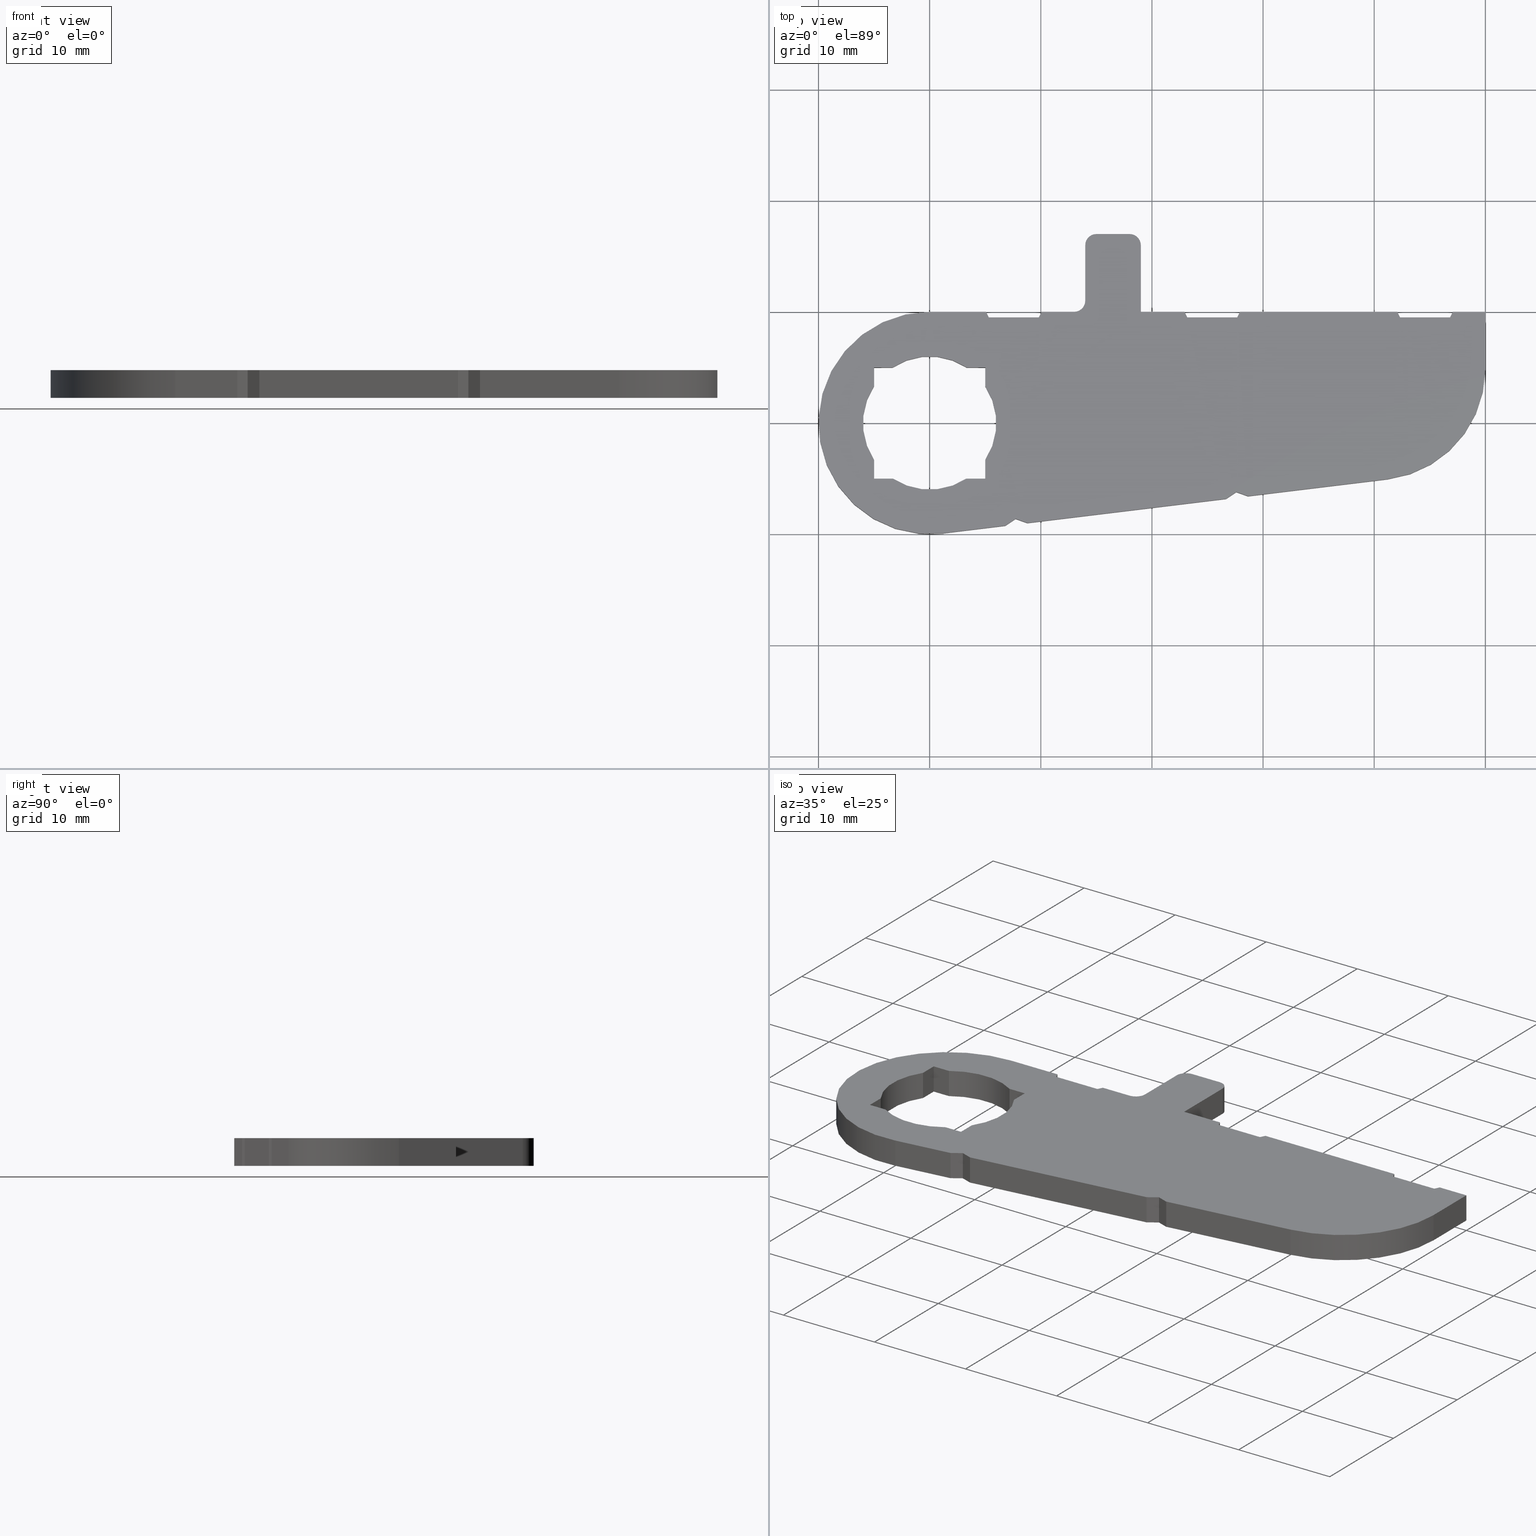
[diagram: canonical four-view strip — front | top / right | iso, engineering-drawing reading convention]
A machine part, canonical four-view strip (front | top / right | iso — engineering-drawing reading convention). The complete STEP part file that produces these views, byte-faithful:
ISO-10303-21;
HEADER;
/****************************************************************
 * Generated by software with PDE/Lib inside                    *
 * PDElib Version v4.4, created Mon 02/23/2004                  *
 * International Technegroup Inc. (www.iti-oh.com)              *
 ****************************************************************/
FILE_DESCRIPTION(('STEP AP203'),'2;1');
FILE_NAME('70CO00009.stp','2011-06-06T18:16:25',(''),(''),'2009.3.110','THINKDESIGN','');
FILE_SCHEMA(('CONFIG_CONTROL_DESIGN'));
ENDSEC;
DATA;
#2=CARTESIAN_POINT('',(46.825017492111371,9.499975159296298,-2.500000000000000));
#3=DIRECTION('',(-0.000000046794917,0.999999999999999,0.0));
#4=DIRECTION('',(-0.999999999999999,-0.000000046794917,0.0));
#5=AXIS2_PLACEMENT_3D('',#2,#3,#4);
#6=PLANE('',#5);
#7=CARTESIAN_POINT('',(46.825017492111371,9.499975159296298,-2.500000000000000));
#8=VERTEX_POINT('',#7);
#9=CARTESIAN_POINT('',(42.325017492111371,9.499974948719171,-2.500000000000000));
#10=VERTEX_POINT('',#9);
#11=CARTESIAN_POINT('',(46.825017492111371,9.499975159296298,-2.500000000000000));
#12=DIRECTION('',(-0.999999999999999,-0.000000046794917,0.0));
#13=VECTOR('',#12,4.500000000000004);
#14=LINE('',#11,#13);
#15=EDGE_CURVE('',#8,#10,#14,.T.);
#16=ORIENTED_EDGE('',*,*,#15,.T.);
#17=CARTESIAN_POINT('',(42.325017492111371,9.499974948719171,0.0));
#18=VERTEX_POINT('',#17);
#19=CARTESIAN_POINT('',(42.325017492111371,9.499974948719171,-2.500000000000000));
#20=DIRECTION('',(0.0,0.0,1.0));
#21=VECTOR('',#20,2.500000000000000);
#22=LINE('',#19,#21);
#23=EDGE_CURVE('',#10,#18,#22,.T.);
#24=ORIENTED_EDGE('',*,*,#23,.T.);
#25=CARTESIAN_POINT('',(46.825017492111371,9.499975159296298,0.0));
#26=VERTEX_POINT('',#25);
#27=CARTESIAN_POINT('',(46.825017492111371,9.499975159296298,0.0));
#28=DIRECTION('',(-0.999999999999999,-0.000000046794917,0.0));
#29=VECTOR('',#28,4.500000000000004);
#30=LINE('',#27,#29);
#31=EDGE_CURVE('',#26,#18,#30,.T.);
#32=ORIENTED_EDGE('',*,*,#31,.F.);
#33=CARTESIAN_POINT('',(46.825017492111371,9.499975159296298,-2.500000000000000));
#34=DIRECTION('',(0.0,0.0,1.0));
#35=VECTOR('',#34,2.500000000000000);
#36=LINE('',#33,#35);
#37=EDGE_CURVE('',#8,#26,#36,.T.);
#38=ORIENTED_EDGE('',*,*,#37,.F.);
#39=EDGE_LOOP('',(#16,#24,#32,#38));
#40=FACE_OUTER_BOUND('',#39,.T.);
#41=ADVANCED_FACE('',(#40),#6,.T.);
#42=CARTESIAN_POINT('',(42.325017492111371,9.499974948719171,-2.500000000000000));
#43=DIRECTION('',(0.894427170072899,0.447213637353989,0.0));
#44=DIRECTION('',(-0.447213637353989,0.894427170072899,0.0));
#45=AXIS2_PLACEMENT_3D('',#42,#43,#44);
#46=PLANE('',#45);
#47=CARTESIAN_POINT('',(42.075017468713938,9.999974937021250,-2.500000000000000));
#48=VERTEX_POINT('',#47);
#49=CARTESIAN_POINT('',(42.325017492111371,9.499974948719171,-2.500000000000000));
#50=DIRECTION('',(-0.447213637353989,0.894427170072899,0.0));
#51=VECTOR('',#50,0.559016994375660);
#52=LINE('',#49,#51);
#53=EDGE_CURVE('',#10,#48,#52,.T.);
#54=ORIENTED_EDGE('',*,*,#53,.T.);
#55=CARTESIAN_POINT('',(42.075017468713938,9.999974937021250,0.0));
#56=VERTEX_POINT('',#55);
#57=CARTESIAN_POINT('',(42.075017468713938,9.999974937021250,-2.500000000000000));
#58=DIRECTION('',(0.0,0.0,1.0));
#59=VECTOR('',#58,2.500000000000000);
#60=LINE('',#57,#59);
#61=EDGE_CURVE('',#48,#56,#60,.T.);
#62=ORIENTED_EDGE('',*,*,#61,.T.);
#63=CARTESIAN_POINT('',(42.325017492111371,9.499974948719171,0.0));
#64=DIRECTION('',(-0.447213637353989,0.894427170072899,0.0));
#65=VECTOR('',#64,0.559016994375660);
#66=LINE('',#63,#65);
#67=EDGE_CURVE('',#18,#56,#66,.T.);
#68=ORIENTED_EDGE('',*,*,#67,.F.);
#69=ORIENTED_EDGE('',*,*,#23,.F.);
#70=EDGE_LOOP('',(#54,#62,#68,#69));
#71=FACE_OUTER_BOUND('',#70,.T.);
#72=ADVANCED_FACE('',(#71),#46,.T.);
#73=CARTESIAN_POINT('',(42.075017468713938,9.999974937021250,-2.500000000000000));
#74=DIRECTION('',(-0.000000046794949,0.999999999999999,0.0));
#75=DIRECTION('',(-0.999999999999999,-0.000000046794949,0.0));
#76=AXIS2_PLACEMENT_3D('',#73,#74,#75);
#77=PLANE('',#76);
#78=CARTESIAN_POINT('',(27.925017457015471,9.999974274872727,-2.500000000000000));
#79=VERTEX_POINT('',#78);
#80=CARTESIAN_POINT('',(42.075017468713938,9.999974937021221,-2.500000000000000));
#81=DIRECTION('',(-0.999999999999999,-0.000000046794947,0.0));
#82=VECTOR('',#81,14.150000011698483);
#83=LINE('',#80,#82);
#84=EDGE_CURVE('',#48,#79,#83,.T.);
#85=ORIENTED_EDGE('',*,*,#84,.T.);
#86=CARTESIAN_POINT('',(27.925017457015471,9.999974274872727,0.0));
#87=VERTEX_POINT('',#86);
#88=CARTESIAN_POINT('',(27.925017457015471,9.999974274872727,-2.500000000000000));
#89=DIRECTION('',(0.0,0.0,1.0));
#90=VECTOR('',#89,2.500000000000000);
#91=LINE('',#88,#90);
#92=EDGE_CURVE('',#79,#87,#91,.T.);
#93=ORIENTED_EDGE('',*,*,#92,.T.);
#94=CARTESIAN_POINT('',(42.075017468713938,9.999974937021221,0.0));
#95=DIRECTION('',(-0.999999999999999,-0.000000046794947,0.0));
#96=VECTOR('',#95,14.150000011698483);
#97=LINE('',#94,#96);
#98=EDGE_CURVE('',#56,#87,#97,.T.);
#99=ORIENTED_EDGE('',*,*,#98,.F.);
#100=ORIENTED_EDGE('',*,*,#61,.F.);
#101=EDGE_LOOP('',(#85,#93,#99,#100));
#102=FACE_OUTER_BOUND('',#101,.T.);
#103=ADVANCED_FACE('',(#102),#77,.T.);
#104=CARTESIAN_POINT('',(27.925017457015471,9.999974274872727,-2.500000000000000));
#105=DIRECTION('',(-0.894427211927175,0.447213553645438,0.0));
#106=DIRECTION('',(-0.447213553645438,-0.894427211927175,0.0));
#107=AXIS2_PLACEMENT_3D('',#104,#105,#106);
#108=PLANE('',#107);
#109=CARTESIAN_POINT('',(27.675017480412905,9.499974263174124,-2.500000000000000));
#110=VERTEX_POINT('',#109);
#111=CARTESIAN_POINT('',(27.925017457015471,9.999974274872727,-2.500000000000000));
#112=DIRECTION('',(-0.447213553645438,-0.894427211927175,0.0));
#113=VECTOR('',#112,0.559016994374846);
#114=LINE('',#111,#113);
#115=EDGE_CURVE('',#79,#110,#114,.T.);
#116=ORIENTED_EDGE('',*,*,#115,.T.);
#117=CARTESIAN_POINT('',(27.675017480412905,9.499974263174124,0.0));
#118=VERTEX_POINT('',#117);
#119=CARTESIAN_POINT('',(27.675017480412905,9.499974263174124,-2.500000000000000));
#120=DIRECTION('',(0.0,0.0,1.0));
#121=VECTOR('',#120,2.500000000000000);
#122=LINE('',#119,#121);
#123=EDGE_CURVE('',#110,#118,#122,.T.);
#124=ORIENTED_EDGE('',*,*,#123,.T.);
#125=CARTESIAN_POINT('',(27.925017457015471,9.999974274872727,0.0));
#126=DIRECTION('',(-0.447213553645438,-0.894427211927175,0.0));
#127=VECTOR('',#126,0.559016994374846);
#128=LINE('',#125,#127);
#129=EDGE_CURVE('',#87,#118,#128,.T.);
#130=ORIENTED_EDGE('',*,*,#129,.F.);
#131=ORIENTED_EDGE('',*,*,#92,.F.);
#132=EDGE_LOOP('',(#116,#124,#130,#131));
#133=FACE_OUTER_BOUND('',#132,.T.);
#134=ADVANCED_FACE('',(#133),#108,.T.);
#135=CARTESIAN_POINT('',(27.675017480412905,9.499974263174124,-2.500000000000000));
#136=DIRECTION('',(-0.000000046794917,0.999999999999999,0.0));
#137=DIRECTION('',(-0.999999999999999,-0.000000046794917,0.0));
#138=AXIS2_PLACEMENT_3D('',#135,#136,#137);
#139=PLANE('',#138);
#140=CARTESIAN_POINT('',(23.175017480412905,9.499974052596997,-2.500000000000000));
#141=VERTEX_POINT('',#140);
#142=CARTESIAN_POINT('',(27.675017480412905,9.499974263174124,-2.500000000000000));
#143=DIRECTION('',(-0.999999999999999,-0.000000046794917,0.0));
#144=VECTOR('',#143,4.500000000000004);
#145=LINE('',#142,#144);
#146=EDGE_CURVE('',#110,#141,#145,.T.);
#147=ORIENTED_EDGE('',*,*,#146,.T.);
#148=CARTESIAN_POINT('',(23.175017480412905,9.499974052596997,0.0));
#149=VERTEX_POINT('',#148);
#150=CARTESIAN_POINT('',(23.175017480412905,9.499974052596997,-2.500000000000000));
#151=DIRECTION('',(0.0,0.0,1.0));
#152=VECTOR('',#151,2.500000000000000);
#153=LINE('',#150,#152);
#154=EDGE_CURVE('',#141,#149,#153,.T.);
#155=ORIENTED_EDGE('',*,*,#154,.T.);
#156=CARTESIAN_POINT('',(27.675017480412905,9.499974263174124,0.0));
#157=DIRECTION('',(-0.999999999999999,-0.000000046794917,0.0));
#158=VECTOR('',#157,4.500000000000004);
#159=LINE('',#156,#158);
#160=EDGE_CURVE('',#118,#149,#159,.T.);
#161=ORIENTED_EDGE('',*,*,#160,.F.);
#162=ORIENTED_EDGE('',*,*,#123,.F.);
#163=EDGE_LOOP('',(#147,#155,#161,#162));
#164=FACE_OUTER_BOUND('',#163,.T.);
#165=ADVANCED_FACE('',(#164),#139,.T.);
#166=CARTESIAN_POINT('',(23.175017480412905,9.499974052596997,-2.500000000000000));
#167=DIRECTION('',(0.894427170072574,0.447213637354640,0.0));
#168=DIRECTION('',(-0.447213637354640,0.894427170072574,0.0));
#169=AXIS2_PLACEMENT_3D('',#166,#167,#168);
#170=PLANE('',#169);
#171=CARTESIAN_POINT('',(22.925017457015471,9.999974040898167,-2.500000000000000));
#172=VERTEX_POINT('',#171);
#173=CARTESIAN_POINT('',(23.175017480412905,9.499974052596997,-2.500000000000000));
#174=DIRECTION('',(-0.447213637354640,0.894427170072574,0.0));
#175=VECTOR('',#174,0.559016994374846);
#176=LINE('',#173,#175);
#177=EDGE_CURVE('',#141,#172,#176,.T.);
#178=ORIENTED_EDGE('',*,*,#177,.T.);
#179=CARTESIAN_POINT('',(22.925017457015471,9.999974040898167,0.0));
#180=VERTEX_POINT('',#179);
#181=CARTESIAN_POINT('',(22.925017457015471,9.999974040898167,-2.500000000000000));
#182=DIRECTION('',(0.0,0.0,1.0));
#183=VECTOR('',#182,2.500000000000000);
#184=LINE('',#181,#183);
#185=EDGE_CURVE('',#172,#180,#184,.T.);
#186=ORIENTED_EDGE('',*,*,#185,.T.);
#187=CARTESIAN_POINT('',(23.175017480412905,9.499974052596997,0.0));
#188=DIRECTION('',(-0.447213637354640,0.894427170072574,0.0));
#189=VECTOR('',#188,0.559016994374846);
#190=LINE('',#187,#189);
#191=EDGE_CURVE('',#149,#180,#190,.T.);
#192=ORIENTED_EDGE('',*,*,#191,.F.);
#193=ORIENTED_EDGE('',*,*,#154,.F.);
#194=EDGE_LOOP('',(#178,#186,#192,#193));
#195=FACE_OUTER_BOUND('',#194,.T.);
#196=ADVANCED_FACE('',(#195),#170,.T.);
#197=CARTESIAN_POINT('',(22.925017457015471,9.999974040898167,-2.500000000000000));
#198=DIRECTION('',(-0.000000046794893,0.999999999999999,0.0));
#199=DIRECTION('',(-0.999999999999999,-0.000000046794893,0.0));
#200=AXIS2_PLACEMENT_3D('',#197,#198,#199);
#201=PLANE('',#200);
#202=CARTESIAN_POINT('',(19.000017462864704,9.999973857228213,-2.500000000000000));
#203=VERTEX_POINT('',#202);
#204=CARTESIAN_POINT('',(22.925017457015471,9.999974040898167,-2.500000000000000));
#205=DIRECTION('',(-0.999999999999999,-0.000000046794893,0.0));
#206=VECTOR('',#205,3.924999994150771);
#207=LINE('',#204,#206);
#208=EDGE_CURVE('',#172,#203,#207,.T.);
#209=ORIENTED_EDGE('',*,*,#208,.T.);
#210=CARTESIAN_POINT('',(19.000017462864704,9.999973857228213,0.0));
#211=VERTEX_POINT('',#210);
#212=CARTESIAN_POINT('',(19.000017462864704,9.999973857228213,-2.500000000000000));
#213=DIRECTION('',(0.0,0.0,1.0));
#214=VECTOR('',#213,2.500000000000000);
#215=LINE('',#212,#214);
#216=EDGE_CURVE('',#203,#211,#215,.T.);
#217=ORIENTED_EDGE('',*,*,#216,.T.);
#218=CARTESIAN_POINT('',(22.925017457015471,9.999974040898167,0.0));
#219=DIRECTION('',(-0.999999999999999,-0.000000046794893,0.0));
#220=VECTOR('',#219,3.924999994150771);
#221=LINE('',#218,#220);
#222=EDGE_CURVE('',#180,#211,#221,.T.);
#223=ORIENTED_EDGE('',*,*,#222,.F.);
#224=ORIENTED_EDGE('',*,*,#185,.F.);
#225=EDGE_LOOP('',(#209,#217,#223,#224));
#226=FACE_OUTER_BOUND('',#225,.T.);
#227=ADVANCED_FACE('',(#226),#201,.T.);
#228=CARTESIAN_POINT('',(19.000017462864704,9.999973857228213,-2.500000000000000));
#229=DIRECTION('',(0.999999999999999,0.000000046794867,0.0));
#230=DIRECTION('',(-0.000000046794867,0.999999999999999,0.0));
#231=AXIS2_PLACEMENT_3D('',#228,#229,#230);
#232=PLANE('',#231);
#233=CARTESIAN_POINT('',(19.000017182095505,15.999973857228213,-2.500000000000000));
#234=VERTEX_POINT('',#233);
#235=CARTESIAN_POINT('',(19.000017462864704,9.999973857228213,-2.500000000000000));
#236=DIRECTION('',(-0.000000046794867,0.999999999999999,0.0));
#237=VECTOR('',#236,6.000000000000006);
#238=LINE('',#235,#237);
#239=EDGE_CURVE('',#203,#234,#238,.T.);
#240=ORIENTED_EDGE('',*,*,#239,.T.);
#241=CARTESIAN_POINT('',(19.000017182095505,15.999973857228213,0.0));
#242=VERTEX_POINT('',#241);
#243=CARTESIAN_POINT('',(19.000017182095505,15.999973857228213,-2.500000000000000));
#244=DIRECTION('',(0.0,0.0,1.0));
#245=VECTOR('',#244,2.500000000000000);
#246=LINE('',#243,#245);
#247=EDGE_CURVE('',#234,#242,#246,.T.);
#248=ORIENTED_EDGE('',*,*,#247,.T.);
#249=CARTESIAN_POINT('',(19.000017462864704,9.999973857228213,0.0));
#250=DIRECTION('',(-0.000000046794867,0.999999999999999,0.0));
#251=VECTOR('',#250,6.000000000000006);
#252=LINE('',#249,#251);
#253=EDGE_CURVE('',#211,#242,#252,.T.);
#254=ORIENTED_EDGE('',*,*,#253,.F.);
#255=ORIENTED_EDGE('',*,*,#216,.F.);
#256=EDGE_LOOP('',(#240,#248,#254,#255));
#257=FACE_OUTER_BOUND('',#256,.T.);
#258=ADVANCED_FACE('',(#257),#232,.T.);
#259=CARTESIAN_POINT('',(18.000017182095505,15.999973810433346,-2.500000000000000));
#260=DIRECTION('',(0.0,0.0,1.0));
#261=DIRECTION('',(1.0,0.0,0.0));
#262=AXIS2_PLACEMENT_3D('',#259,#260,#261);
#263=CYLINDRICAL_SURFACE('',#262,1.0);
#264=CARTESIAN_POINT('',(18.000017135300411,16.999973810433346,-2.500000000000000));
#265=VERTEX_POINT('',#264);
#266=CARTESIAN_POINT('',(18.000017182095505,15.999973810433346,-2.500000000000000));
#267=DIRECTION('',(0.0,0.0,1.0));
#268=DIRECTION('',(1.0,0.0,0.0));
#269=AXIS2_PLACEMENT_3D('',#266,#267,#268);
#270=CIRCLE('',#269,1.0);
#271=EDGE_CURVE('',#234,#265,#270,.T.);
#272=ORIENTED_EDGE('',*,*,#271,.T.);
#273=CARTESIAN_POINT('',(18.000017135300411,16.999973810433346,0.0));
#274=VERTEX_POINT('',#273);
#275=CARTESIAN_POINT('',(18.000017135300411,16.999973810433346,-2.500000000000000));
#276=DIRECTION('',(0.0,0.0,1.0));
#277=VECTOR('',#276,2.500000000000000);
#278=LINE('',#275,#277);
#279=EDGE_CURVE('',#265,#274,#278,.T.);
#280=ORIENTED_EDGE('',*,*,#279,.T.);
#281=CARTESIAN_POINT('',(18.000017182095505,15.999973810433346,0.0));
#282=DIRECTION('',(0.0,0.0,1.0));
#283=DIRECTION('',(1.0,0.0,0.0));
#284=AXIS2_PLACEMENT_3D('',#281,#282,#283);
#285=CIRCLE('',#284,1.0);
#286=EDGE_CURVE('',#242,#274,#285,.T.);
#287=ORIENTED_EDGE('',*,*,#286,.F.);
#288=ORIENTED_EDGE('',*,*,#247,.F.);
#289=EDGE_LOOP('',(#272,#280,#287,#288));
#290=FACE_OUTER_BOUND('',#289,.T.);
#291=ADVANCED_FACE('',(#290),#263,.T.);
#292=CARTESIAN_POINT('',(18.000017135300411,16.999973810433346,-2.500000000000000));
#293=DIRECTION('',(-0.000000046794867,0.999999999999999,0.0));
#294=DIRECTION('',(-0.999999999999999,-0.000000046794867,0.0));
#295=AXIS2_PLACEMENT_3D('',#292,#293,#294);
#296=PLANE('',#295);
#297=CARTESIAN_POINT('',(15.000017135300411,16.999973670048746,-2.500000000000000));
#298=VERTEX_POINT('',#297);
#299=CARTESIAN_POINT('',(18.000017135300411,16.999973810433346,-2.500000000000000));
#300=DIRECTION('',(-0.999999999999999,-0.000000046794867,0.0));
#301=VECTOR('',#300,3.000000000000003);
#302=LINE('',#299,#301);
#303=EDGE_CURVE('',#265,#298,#302,.T.);
#304=ORIENTED_EDGE('',*,*,#303,.T.);
#305=CARTESIAN_POINT('',(15.000017135300411,16.999973670048746,0.0));
#306=VERTEX_POINT('',#305);
#307=CARTESIAN_POINT('',(15.000017135300411,16.999973670048746,-2.500000000000000));
#308=DIRECTION('',(0.0,0.0,1.0));
#309=VECTOR('',#308,2.500000000000000);
#310=LINE('',#307,#309);
#311=EDGE_CURVE('',#298,#306,#310,.T.);
#312=ORIENTED_EDGE('',*,*,#311,.T.);
#313=CARTESIAN_POINT('',(18.000017135300411,16.999973810433346,0.0));
#314=DIRECTION('',(-0.999999999999999,-0.000000046794867,0.0));
#315=VECTOR('',#314,3.000000000000003);
#316=LINE('',#313,#315);
#317=EDGE_CURVE('',#274,#306,#316,.T.);
#318=ORIENTED_EDGE('',*,*,#317,.F.);
#319=ORIENTED_EDGE('',*,*,#279,.F.);
#320=EDGE_LOOP('',(#304,#312,#318,#319));
#321=FACE_OUTER_BOUND('',#320,.T.);
#322=ADVANCED_FACE('',(#321),#296,.T.);
#323=CARTESIAN_POINT('',(15.000017182095505,15.999973670048746,-2.500000000000000));
#324=DIRECTION('',(0.0,0.0,1.0));
#325=DIRECTION('',(1.0,0.0,0.0));
#326=AXIS2_PLACEMENT_3D('',#323,#324,#325);
#327=CYLINDRICAL_SURFACE('',#326,1.0);
#328=CARTESIAN_POINT('',(14.000017182095505,15.999973623253879,-2.500000000000000));
#329=VERTEX_POINT('',#328);
#330=CARTESIAN_POINT('',(15.000017182095505,15.999973670048746,-2.500000000000000));
#331=DIRECTION('',(0.0,0.0,1.0));
#332=DIRECTION('',(1.0,0.0,0.0));
#333=AXIS2_PLACEMENT_3D('',#330,#331,#332);
#334=CIRCLE('',#333,1.0);
#335=EDGE_CURVE('',#298,#329,#334,.T.);
#336=ORIENTED_EDGE('',*,*,#335,.T.);
#337=CARTESIAN_POINT('',(14.000017182095505,15.999973623253879,0.0));
#338=VERTEX_POINT('',#337);
#339=CARTESIAN_POINT('',(14.000017182095505,15.999973623253879,-2.500000000000000));
#340=DIRECTION('',(0.0,0.0,1.0));
#341=VECTOR('',#340,2.500000000000000);
#342=LINE('',#339,#341);
#343=EDGE_CURVE('',#329,#338,#342,.T.);
#344=ORIENTED_EDGE('',*,*,#343,.T.);
#345=CARTESIAN_POINT('',(15.000017182095505,15.999973670048746,0.0));
#346=DIRECTION('',(0.0,0.0,1.0));
#347=DIRECTION('',(1.0,0.0,0.0));
#348=AXIS2_PLACEMENT_3D('',#345,#346,#347);
#349=CIRCLE('',#348,1.0);
#350=EDGE_CURVE('',#306,#338,#349,.T.);
#351=ORIENTED_EDGE('',*,*,#350,.F.);
#352=ORIENTED_EDGE('',*,*,#311,.F.);
#353=EDGE_LOOP('',(#336,#344,#351,#352));
#354=FACE_OUTER_BOUND('',#353,.T.);
#355=ADVANCED_FACE('',(#354),#327,.T.);
#356=CARTESIAN_POINT('',(14.000017182095505,15.999973623253879,-2.500000000000000));
#357=DIRECTION('',(-0.999999999999999,-0.000000046794867,0.0));
#358=DIRECTION('',(0.000000046794867,-0.999999999999999,0.0));
#359=AXIS2_PLACEMENT_3D('',#356,#357,#358);
#360=PLANE('',#359);
#361=CARTESIAN_POINT('',(14.000017416069838,10.999973623253879,-2.500000000000000));
#362=VERTEX_POINT('',#361);
#363=CARTESIAN_POINT('',(14.000017182095505,15.999973623253879,-2.500000000000000));
#364=DIRECTION('',(0.000000046794867,-0.999999999999999,0.0));
#365=VECTOR('',#364,5.000000000000005);
#366=LINE('',#363,#365);
#367=EDGE_CURVE('',#329,#362,#366,.T.);
#368=ORIENTED_EDGE('',*,*,#367,.T.);
#369=CARTESIAN_POINT('',(14.000017416069838,10.999973623253879,0.0));
#370=VERTEX_POINT('',#369);
#371=CARTESIAN_POINT('',(14.000017416069838,10.999973623253879,-2.500000000000000));
#372=DIRECTION('',(0.0,0.0,1.0));
#373=VECTOR('',#372,2.500000000000000);
#374=LINE('',#371,#373);
#375=EDGE_CURVE('',#362,#370,#374,.T.);
#376=ORIENTED_EDGE('',*,*,#375,.T.);
#377=CARTESIAN_POINT('',(14.000017182095505,15.999973623253879,0.0));
#378=DIRECTION('',(0.000000046794867,-0.999999999999999,0.0));
#379=VECTOR('',#378,5.000000000000005);
#380=LINE('',#377,#379);
#381=EDGE_CURVE('',#338,#370,#380,.T.);
#382=ORIENTED_EDGE('',*,*,#381,.F.);
#383=ORIENTED_EDGE('',*,*,#343,.F.);
#384=EDGE_LOOP('',(#368,#376,#382,#383));
#385=FACE_OUTER_BOUND('',#384,.T.);
#386=ADVANCED_FACE('',(#385),#360,.T.);
#387=CARTESIAN_POINT('',(13.000017416069838,10.999973576459013,-2.500000000000000));
#388=DIRECTION('',(0.0,0.0,-1.0));
#389=DIRECTION('',(0.999999999999999,0.000000046794867,0.0));
#390=AXIS2_PLACEMENT_3D('',#387,#388,#389);
#391=CYLINDRICAL_SURFACE('',#390,1.0);
#392=CARTESIAN_POINT('',(13.000017462864704,9.999973576459013,-2.500000000000000));
#393=VERTEX_POINT('',#392);
#394=CARTESIAN_POINT('',(13.000017416069838,10.999973576459013,-2.500000000000000));
#395=DIRECTION('',(0.0,0.0,-1.0));
#396=DIRECTION('',(1.0,0.0,0.0));
#397=AXIS2_PLACEMENT_3D('',#394,#395,#396);
#398=CIRCLE('',#397,1.0);
#399=EDGE_CURVE('',#362,#393,#398,.T.);
#400=ORIENTED_EDGE('',*,*,#399,.T.);
#401=CARTESIAN_POINT('',(13.000017462864704,9.999973576459013,0.0));
#402=VERTEX_POINT('',#401);
#403=CARTESIAN_POINT('',(13.000017462864704,9.999973576459013,-2.500000000000000));
#404=DIRECTION('',(0.0,0.0,1.0));
#405=VECTOR('',#404,2.500000000000000);
#406=LINE('',#403,#405);
#407=EDGE_CURVE('',#393,#402,#406,.T.);
#408=ORIENTED_EDGE('',*,*,#407,.T.);
#409=CARTESIAN_POINT('',(13.000017416069838,10.999973576459013,0.0));
#410=DIRECTION('',(0.0,0.0,-1.0));
#411=DIRECTION('',(1.0,0.0,0.0));
#412=AXIS2_PLACEMENT_3D('',#409,#410,#411);
#413=CIRCLE('',#412,1.0);
#414=EDGE_CURVE('',#370,#402,#413,.T.);
#415=ORIENTED_EDGE('',*,*,#414,.F.);
#416=ORIENTED_EDGE('',*,*,#375,.F.);
#417=EDGE_LOOP('',(#400,#408,#415,#416));
#418=FACE_OUTER_BOUND('',#417,.T.);
#419=ADVANCED_FACE('',(#418),#391,.F.);
#420=CARTESIAN_POINT('',(13.000017462864704,9.999973576459013,-2.500000000000000));
#421=DIRECTION('',(-0.000000046794902,0.999999999999999,0.0));
#422=DIRECTION('',(-0.999999999999999,-0.000000046794902,0.0));
#423=AXIS2_PLACEMENT_3D('',#420,#421,#422);
#424=PLANE('',#423);
#425=CARTESIAN_POINT('',(10.075017468714165,9.999973439583926,-2.500000000000000));
#426=VERTEX_POINT('',#425);
#427=CARTESIAN_POINT('',(13.000017462864704,9.999973576459013,-2.500000000000000));
#428=DIRECTION('',(-0.999999999999999,-0.000000046794902,0.0));
#429=VECTOR('',#428,2.924999994150543);
#430=LINE('',#427,#429);
#431=EDGE_CURVE('',#393,#426,#430,.T.);
#432=ORIENTED_EDGE('',*,*,#431,.T.);
#433=CARTESIAN_POINT('',(10.075017468714165,9.999973439583926,0.0));
#434=VERTEX_POINT('',#433);
#435=CARTESIAN_POINT('',(10.075017468714165,9.999973439583926,-2.500000000000000));
#436=DIRECTION('',(0.0,0.0,1.0));
#437=VECTOR('',#436,2.500000000000000);
#438=LINE('',#435,#437);
#439=EDGE_CURVE('',#426,#434,#438,.T.);
#440=ORIENTED_EDGE('',*,*,#439,.T.);
#441=CARTESIAN_POINT('',(13.000017462864704,9.999973576459013,0.0));
#442=DIRECTION('',(-0.999999999999999,-0.000000046794902,0.0));
#443=VECTOR('',#442,2.924999994150543);
#444=LINE('',#441,#443);
#445=EDGE_CURVE('',#402,#434,#444,.T.);
#446=ORIENTED_EDGE('',*,*,#445,.F.);
#447=ORIENTED_EDGE('',*,*,#407,.F.);
#448=EDGE_LOOP('',(#432,#440,#446,#447));
#449=FACE_OUTER_BOUND('',#448,.T.);
#450=ADVANCED_FACE('',(#449),#424,.T.);
#451=CARTESIAN_POINT('',(10.075017468714165,9.999973439583926,-2.500000000000000));
#452=DIRECTION('',(-0.894427211927256,0.447213553645275,0.0));
#453=DIRECTION('',(-0.447213553645275,-0.894427211927256,0.0));
#454=AXIS2_PLACEMENT_3D('',#451,#452,#453);
#455=PLANE('',#454);
#456=CARTESIAN_POINT('',(9.825017492111599,9.499973427885095,-2.500000000000000));
#457=VERTEX_POINT('',#456);
#458=CARTESIAN_POINT('',(10.075017468714165,9.999973439583926,-2.500000000000000));
#459=DIRECTION('',(-0.447213553645275,-0.894427211927256,0.0));
#460=VECTOR('',#459,0.559016994375050);
#461=LINE('',#458,#460);
#462=EDGE_CURVE('',#426,#457,#461,.T.);
#463=ORIENTED_EDGE('',*,*,#462,.T.);
#464=CARTESIAN_POINT('',(9.825017492111599,9.499973427885095,0.0));
#465=VERTEX_POINT('',#464);
#466=CARTESIAN_POINT('',(9.825017492111599,9.499973427885095,-2.500000000000000));
#467=DIRECTION('',(0.0,0.0,1.0));
#468=VECTOR('',#467,2.500000000000000);
#469=LINE('',#466,#468);
#470=EDGE_CURVE('',#457,#465,#469,.T.);
#471=ORIENTED_EDGE('',*,*,#470,.T.);
#472=CARTESIAN_POINT('',(10.075017468714165,9.999973439583926,0.0));
#473=DIRECTION('',(-0.447213553645275,-0.894427211927256,0.0));
#474=VECTOR('',#473,0.559016994375050);
#475=LINE('',#472,#474);
#476=EDGE_CURVE('',#434,#465,#475,.T.);
#477=ORIENTED_EDGE('',*,*,#476,.F.);
#478=ORIENTED_EDGE('',*,*,#439,.F.);
#479=EDGE_LOOP('',(#463,#471,#477,#478));
#480=FACE_OUTER_BOUND('',#479,.T.);
#481=ADVANCED_FACE('',(#480),#455,.T.);
#482=CARTESIAN_POINT('',(9.825017492111599,9.499973427885095,-2.500000000000000));
#483=DIRECTION('',(-0.000000046794867,0.999999999999999,0.0));
#484=DIRECTION('',(-0.999999999999999,-0.000000046794867,0.0));
#485=AXIS2_PLACEMENT_3D('',#482,#483,#484);
#486=PLANE('',#485);
#487=CARTESIAN_POINT('',(5.325017492111599,9.499973217308195,-2.500000000000000));
#488=VERTEX_POINT('',#487);
#489=CARTESIAN_POINT('',(9.825017492111599,9.499973427885095,-2.500000000000000));
#490=DIRECTION('',(-0.999999999999999,-0.000000046794867,0.0));
#491=VECTOR('',#490,4.500000000000004);
#492=LINE('',#489,#491);
#493=EDGE_CURVE('',#457,#488,#492,.T.);
#494=ORIENTED_EDGE('',*,*,#493,.T.);
#495=CARTESIAN_POINT('',(5.325017492111599,9.499973217308195,0.0));
#496=VERTEX_POINT('',#495);
#497=CARTESIAN_POINT('',(5.325017492111599,9.499973217308195,-2.500000000000000));
#498=DIRECTION('',(0.0,0.0,1.0));
#499=VECTOR('',#498,2.500000000000000);
#500=LINE('',#497,#499);
#501=EDGE_CURVE('',#488,#496,#500,.T.);
#502=ORIENTED_EDGE('',*,*,#501,.T.);
#503=CARTESIAN_POINT('',(9.825017492111599,9.499973427885095,0.0));
#504=DIRECTION('',(-0.999999999999999,-0.000000046794867,0.0));
#505=VECTOR('',#504,4.500000000000004);
#506=LINE('',#503,#505);
#507=EDGE_CURVE('',#465,#496,#506,.T.);
#508=ORIENTED_EDGE('',*,*,#507,.F.);
#509=ORIENTED_EDGE('',*,*,#470,.F.);
#510=EDGE_LOOP('',(#494,#502,#508,#509));
#511=FACE_OUTER_BOUND('',#510,.T.);
#512=ADVANCED_FACE('',(#511),#486,.T.);
#513=CARTESIAN_POINT('',(5.325017492111599,9.499973217308195,-2.500000000000000));
#514=DIRECTION('',(0.894427170072574,0.447213637354640,0.0));
#515=DIRECTION('',(-0.447213637354640,0.894427170072574,0.0));
#516=AXIS2_PLACEMENT_3D('',#513,#514,#515);
#517=PLANE('',#516);
#518=CARTESIAN_POINT('',(5.075017468714165,9.999973205609365,-2.500000000000000));
#519=VERTEX_POINT('',#518);
#520=CARTESIAN_POINT('',(5.325017492111599,9.499973217308195,-2.500000000000000));
#521=DIRECTION('',(-0.447213637354640,0.894427170072574,0.0));
#522=VECTOR('',#521,0.559016994374846);
#523=LINE('',#520,#522);
#524=EDGE_CURVE('',#488,#519,#523,.T.);
#525=ORIENTED_EDGE('',*,*,#524,.T.);
#526=CARTESIAN_POINT('',(5.075017468714165,9.999973205609365,0.0));
#527=VERTEX_POINT('',#526);
#528=CARTESIAN_POINT('',(5.075017468714165,9.999973205609365,-2.500000000000000));
#529=DIRECTION('',(0.0,0.0,1.0));
#530=VECTOR('',#529,2.500000000000000);
#531=LINE('',#528,#530);
#532=EDGE_CURVE('',#519,#527,#531,.T.);
#533=ORIENTED_EDGE('',*,*,#532,.T.);
#534=CARTESIAN_POINT('',(5.325017492111599,9.499973217308195,0.0));
#535=DIRECTION('',(-0.447213637354640,0.894427170072574,0.0));
#536=VECTOR('',#535,0.559016994374846);
#537=LINE('',#534,#536);
#538=EDGE_CURVE('',#496,#527,#537,.T.);
#539=ORIENTED_EDGE('',*,*,#538,.F.);
#540=ORIENTED_EDGE('',*,*,#501,.F.);
#541=EDGE_LOOP('',(#525,#533,#539,#540));
#542=FACE_OUTER_BOUND('',#541,.T.);
#543=ADVANCED_FACE('',(#542),#517,.T.);
#544=CARTESIAN_POINT('',(5.075017468714165,9.999973205609365,-2.500000000000000));
#545=DIRECTION('',(-0.000000046794891,0.999999999999999,0.0));
#546=DIRECTION('',(-0.999999999999999,-0.000000046794891,0.0));
#547=AXIS2_PLACEMENT_3D('',#544,#545,#546);
#548=PLANE('',#547);
#549=CARTESIAN_POINT('',(0.000017462864719,9.999972968125292,-2.500000000000000));
#550=VERTEX_POINT('',#549);
#551=CARTESIAN_POINT('',(5.075017468714165,9.999973205609365,-2.500000000000000));
#552=DIRECTION('',(-0.999999999999999,-0.000000046794891,0.0));
#553=VECTOR('',#552,5.075000005849466);
#554=LINE('',#551,#553);
#555=EDGE_CURVE('',#519,#550,#554,.T.);
#556=ORIENTED_EDGE('',*,*,#555,.T.);
#557=CARTESIAN_POINT('',(0.000017462864719,9.999972968125292,0.0));
#558=VERTEX_POINT('',#557);
#559=CARTESIAN_POINT('',(0.000017462864719,9.999972968125292,-2.500000000000000));
#560=DIRECTION('',(0.0,0.0,1.0));
#561=VECTOR('',#560,2.500000000000000);
#562=LINE('',#559,#561);
#563=EDGE_CURVE('',#550,#558,#562,.T.);
#564=ORIENTED_EDGE('',*,*,#563,.T.);
#565=CARTESIAN_POINT('',(5.075017468714165,9.999973205609365,0.0));
#566=DIRECTION('',(-0.999999999999999,-0.000000046794891,0.0));
#567=VECTOR('',#566,5.075000005849466);
#568=LINE('',#565,#567);
#569=EDGE_CURVE('',#527,#558,#568,.T.);
#570=ORIENTED_EDGE('',*,*,#569,.F.);
#571=ORIENTED_EDGE('',*,*,#532,.F.);
#572=EDGE_LOOP('',(#556,#564,#570,#571));
#573=FACE_OUTER_BOUND('',#572,.T.);
#574=ADVANCED_FACE('',(#573),#548,.T.);
#575=CARTESIAN_POINT('',(0.000017930813826,-0.000027031874708,-2.500000000000000));
#576=DIRECTION('',(0.0,0.0,1.0));
#577=DIRECTION('',(1.0,0.0,0.0));
#578=AXIS2_PLACEMENT_3D('',#575,#576,#577);
#579=CYLINDRICAL_SURFACE('',#578,10.0);
#580=CARTESIAN_POINT('',(1.207432200476475,-9.926866951074373,-2.500000000000000));
#581=VERTEX_POINT('',#580);
#582=CARTESIAN_POINT('',(0.000017930813826,-0.000027031874708,-2.500000000000000));
#583=DIRECTION('',(0.0,0.0,1.0));
#584=DIRECTION('',(1.0,0.0,0.0));
#585=AXIS2_PLACEMENT_3D('',#582,#583,#584);
#586=CIRCLE('',#585,10.0);
#587=EDGE_CURVE('',#550,#581,#586,.T.);
#588=ORIENTED_EDGE('',*,*,#587,.T.);
#589=CARTESIAN_POINT('',(1.207432200476475,-9.926866951074373,0.0));
#590=VERTEX_POINT('',#589);
#591=CARTESIAN_POINT('',(1.207432200476475,-9.926866951074373,-2.500000000000000));
#592=DIRECTION('',(0.0,0.0,1.0));
#593=VECTOR('',#592,2.500000000000000);
#594=LINE('',#591,#593);
#595=EDGE_CURVE('',#581,#590,#594,.T.);
#596=ORIENTED_EDGE('',*,*,#595,.T.);
#597=CARTESIAN_POINT('',(0.000017930813826,-0.000027031874708,0.0));
#598=DIRECTION('',(0.0,0.0,1.0));
#599=DIRECTION('',(1.0,0.0,0.0));
#600=AXIS2_PLACEMENT_3D('',#597,#598,#599);
#601=CIRCLE('',#600,10.0);
#602=EDGE_CURVE('',#558,#590,#601,.T.);
#603=ORIENTED_EDGE('',*,*,#602,.F.);
#604=ORIENTED_EDGE('',*,*,#563,.F.);
#605=EDGE_LOOP('',(#588,#596,#603,#604));
#606=FACE_OUTER_BOUND('',#605,.T.);
#607=ADVANCED_FACE('',(#606),#579,.T.);
#608=CARTESIAN_POINT('',(1.207432200476475,-9.926866951074373,-2.500000000000000));
#609=DIRECTION('',(0.120741426966250,-0.992683991919963,0.0));
#610=DIRECTION('',(0.992683991919963,0.120741426966250,0.0));
#611=AXIS2_PLACEMENT_3D('',#608,#609,#610);
#612=PLANE('',#611);
#613=CARTESIAN_POINT('',(6.807334365896210,-9.245743669317164,-2.500000000000000));
#614=VERTEX_POINT('',#613);
#615=CARTESIAN_POINT('',(1.207432200476475,-9.926866951074373,-2.500000000000000));
#616=DIRECTION('',(0.992683991919963,0.120741426966250,0.0));
#617=VECTOR('',#616,5.641173032909157);
#618=LINE('',#615,#617);
#619=EDGE_CURVE('',#581,#614,#618,.T.);
#620=ORIENTED_EDGE('',*,*,#619,.T.);
#621=CARTESIAN_POINT('',(6.807334365896210,-9.245743669317164,0.0));
#622=VERTEX_POINT('',#621);
#623=CARTESIAN_POINT('',(6.807334365896210,-9.245743669317164,-2.500000000000000));
#624=DIRECTION('',(0.0,0.0,1.0));
#625=VECTOR('',#624,2.500000000000000);
#626=LINE('',#623,#625);
#627=EDGE_CURVE('',#614,#622,#626,.T.);
#628=ORIENTED_EDGE('',*,*,#627,.T.);
#629=CARTESIAN_POINT('',(1.207432200476475,-9.926866951074373,0.0));
#630=DIRECTION('',(0.992683991919963,0.120741426966250,0.0));
#631=VECTOR('',#630,5.641173032909157);
#632=LINE('',#629,#631);
#633=EDGE_CURVE('',#590,#622,#632,.T.);
#634=ORIENTED_EDGE('',*,*,#633,.F.);
#635=ORIENTED_EDGE('',*,*,#595,.F.);
#636=EDGE_LOOP('',(#620,#628,#634,#635));
#637=FACE_OUTER_BOUND('',#636,.T.);
#638=ADVANCED_FACE('',(#637),#612,.T.);
#639=CARTESIAN_POINT('',(6.807334365896210,-9.245743669317164,-2.500000000000000));
#640=DIRECTION('',(0.551936192580638,-0.833886346764108,0.0));
#641=DIRECTION('',(0.833886346764108,0.551936192580638,0.0));
#642=AXIS2_PLACEMENT_3D('',#639,#640,#641);
#643=PLANE('',#642);
#644=CARTESIAN_POINT('',(7.739647644330638,-8.628660246392343,-2.500000000000000));
#645=VERTEX_POINT('',#644);
#646=CARTESIAN_POINT('',(6.807334365896210,-9.245743669317164,-2.500000000000000));
#647=DIRECTION('',(0.833886346764108,0.551936192580638,0.0));
#648=VECTOR('',#647,1.118033988747107);
#649=LINE('',#646,#648);
#650=EDGE_CURVE('',#614,#645,#649,.T.);
#651=ORIENTED_EDGE('',*,*,#650,.T.);
#652=CARTESIAN_POINT('',(7.739647644330638,-8.628660246392343,0.0));
#653=VERTEX_POINT('',#652);
#654=CARTESIAN_POINT('',(7.739647644330638,-8.628660246392343,-2.500000000000000));
#655=DIRECTION('',(0.0,0.0,1.0));
#656=VECTOR('',#655,2.500000000000000);
#657=LINE('',#654,#656);
#658=EDGE_CURVE('',#645,#653,#657,.T.);
#659=ORIENTED_EDGE('',*,*,#658,.T.);
#660=CARTESIAN_POINT('',(6.807334365896210,-9.245743669317164,0.0));
#661=DIRECTION('',(0.833886346764108,0.551936192580638,0.0));
#662=VECTOR('',#661,1.118033988747107);
#663=LINE('',#660,#662);
#664=EDGE_CURVE('',#622,#653,#663,.T.);
#665=ORIENTED_EDGE('',*,*,#664,.F.);
#666=ORIENTED_EDGE('',*,*,#627,.F.);
#667=EDGE_LOOP('',(#651,#659,#665,#666));
#668=FACE_OUTER_BOUND('',#667,.T.);
#669=ADVANCED_FACE('',(#668),#643,.T.);
#670=CARTESIAN_POINT('',(7.739647644330638,-8.628660246392343,-2.500000000000000));
#671=DIRECTION('',(-0.335947361862914,-0.941880762122971,0.0));
#672=DIRECTION('',(0.941880762122971,-0.335947361862914,0.0));
#673=AXIS2_PLACEMENT_3D('',#670,#671,#672);
#674=PLANE('',#673);
#675=CARTESIAN_POINT('',(8.792702349735734,-9.004260815384725,-2.500000000000000));
#676=VERTEX_POINT('',#675);
#677=CARTESIAN_POINT('',(7.739647644330638,-8.628660246392343,-2.500000000000000));
#678=DIRECTION('',(0.941880762122971,-0.335947361862914,0.0));
#679=VECTOR('',#678,1.118033988749916);
#680=LINE('',#677,#679);
#681=EDGE_CURVE('',#645,#676,#680,.T.);
#682=ORIENTED_EDGE('',*,*,#681,.T.);
#683=CARTESIAN_POINT('',(8.792702349735734,-9.004260815384725,0.0));
#684=VERTEX_POINT('',#683);
#685=CARTESIAN_POINT('',(8.792702349735734,-9.004260815384725,-2.500000000000000));
#686=DIRECTION('',(0.0,0.0,1.0));
#687=VECTOR('',#686,2.500000000000000);
#688=LINE('',#685,#687);
#689=EDGE_CURVE('',#676,#684,#688,.T.);
#690=ORIENTED_EDGE('',*,*,#689,.T.);
#691=CARTESIAN_POINT('',(7.739647644330638,-8.628660246392343,0.0));
#692=DIRECTION('',(0.941880762122971,-0.335947361862914,0.0));
#693=VECTOR('',#692,1.118033988749916);
#694=LINE('',#691,#693);
#695=EDGE_CURVE('',#653,#684,#694,.T.);
#696=ORIENTED_EDGE('',*,*,#695,.F.);
#697=ORIENTED_EDGE('',*,*,#658,.F.);
#698=EDGE_LOOP('',(#682,#690,#696,#697));
#699=FACE_OUTER_BOUND('',#698,.T.);
#700=ADVANCED_FACE('',(#699),#674,.T.);
#701=CARTESIAN_POINT('',(8.792702349735734,-9.004260815384725,-2.500000000000000));
#702=DIRECTION('',(0.120741426966118,-0.992683991919979,0.0));
#703=DIRECTION('',(0.992683991919979,0.120741426966118,0.0));
#704=AXIS2_PLACEMENT_3D('',#701,#702,#703);
#705=PLANE('',#704);
#706=CARTESIAN_POINT('',(26.661014204275091,-6.830915129997067,-2.500000000000000));
#707=VERTEX_POINT('',#706);
#708=CARTESIAN_POINT('',(8.792702349735734,-9.004260815384725,-2.500000000000000));
#709=DIRECTION('',(0.992683991919979,0.120741426966118,0.0));
#710=VECTOR('',#709,17.999999999979579);
#711=LINE('',#708,#710);
#712=EDGE_CURVE('',#676,#707,#711,.T.);
#713=ORIENTED_EDGE('',*,*,#712,.T.);
#714=CARTESIAN_POINT('',(26.661014204275091,-6.830915129997067,0.0));
#715=VERTEX_POINT('',#714);
#716=CARTESIAN_POINT('',(26.661014204275091,-6.830915129997067,-2.500000000000000));
#717=DIRECTION('',(0.0,0.0,1.0));
#718=VECTOR('',#717,2.500000000000000);
#719=LINE('',#716,#718);
#720=EDGE_CURVE('',#707,#715,#719,.T.);
#721=ORIENTED_EDGE('',*,*,#720,.T.);
#722=CARTESIAN_POINT('',(8.792702349735734,-9.004260815384725,0.0));
#723=DIRECTION('',(0.992683991919979,0.120741426966118,0.0));
#724=VECTOR('',#723,17.999999999979579);
#725=LINE('',#722,#724);
#726=EDGE_CURVE('',#684,#715,#725,.T.);
#727=ORIENTED_EDGE('',*,*,#726,.F.);
#728=ORIENTED_EDGE('',*,*,#689,.F.);
#729=EDGE_LOOP('',(#713,#721,#727,#728));
#730=FACE_OUTER_BOUND('',#729,.T.);
#731=ADVANCED_FACE('',(#730),#705,.T.);
#732=CARTESIAN_POINT('',(26.661014204275091,-6.830915129997067,-2.500000000000000));
#733=DIRECTION('',(0.551936192580500,-0.833886346764199,0.0));
#734=DIRECTION('',(0.833886346764199,0.551936192580500,0.0));
#735=AXIS2_PLACEMENT_3D('',#732,#733,#734);
#736=PLANE('',#735);
#737=CARTESIAN_POINT('',(27.593327482710627,-6.213831707071734,-2.500000000000000));
#738=VERTEX_POINT('',#737);
#739=CARTESIAN_POINT('',(26.661014204275091,-6.830915129997067,-2.500000000000000));
#740=DIRECTION('',(0.833886346764199,0.551936192580500,0.0));
#741=VECTOR('',#740,1.118033988748313);
#742=LINE('',#739,#741);
#743=EDGE_CURVE('',#707,#738,#742,.T.);
#744=ORIENTED_EDGE('',*,*,#743,.T.);
#745=CARTESIAN_POINT('',(27.593327482710627,-6.213831707071734,0.0));
#746=VERTEX_POINT('',#745);
#747=CARTESIAN_POINT('',(27.593327482710627,-6.213831707071734,-2.500000000000000));
#748=DIRECTION('',(0.0,0.0,1.0));
#749=VECTOR('',#748,2.500000000000000);
#750=LINE('',#747,#749);
#751=EDGE_CURVE('',#738,#746,#750,.T.);
#752=ORIENTED_EDGE('',*,*,#751,.T.);
#753=CARTESIAN_POINT('',(26.661014204275091,-6.830915129997067,0.0));
#754=DIRECTION('',(0.833886346764199,0.551936192580500,0.0));
#755=VECTOR('',#754,1.118033988748313);
#756=LINE('',#753,#755);
#757=EDGE_CURVE('',#715,#746,#756,.T.);
#758=ORIENTED_EDGE('',*,*,#757,.F.);
#759=ORIENTED_EDGE('',*,*,#720,.F.);
#760=EDGE_LOOP('',(#744,#752,#758,#759));
#761=FACE_OUTER_BOUND('',#760,.T.);
#762=ADVANCED_FACE('',(#761),#736,.T.);
#763=CARTESIAN_POINT('',(27.593327482710627,-6.213831707071734,-2.500000000000000));
#764=DIRECTION('',(-0.335947361863103,-0.941880762122904,0.0));
#765=DIRECTION('',(0.941880762122904,-0.335947361863103,0.0));
#766=AXIS2_PLACEMENT_3D('',#763,#764,#765);
#767=PLANE('',#766);
#768=CARTESIAN_POINT('',(28.646382188115744,-6.589432276066276,-2.500000000000000));
#769=VERTEX_POINT('',#768);
#770=CARTESIAN_POINT('',(27.593327482710627,-6.213831707071734,-2.500000000000000));
#771=DIRECTION('',(0.941880762122903,-0.335947361863103,0.0));
#772=VECTOR('',#771,1.118033988752078);
#773=LINE('',#770,#772);
#774=EDGE_CURVE('',#738,#769,#773,.T.);
#775=ORIENTED_EDGE('',*,*,#774,.T.);
#776=CARTESIAN_POINT('',(28.646382188115744,-6.589432276066276,0.0));
#777=VERTEX_POINT('',#776);
#778=CARTESIAN_POINT('',(28.646382188115744,-6.589432276066276,-2.500000000000000));
#779=DIRECTION('',(0.0,0.0,1.0));
#780=VECTOR('',#779,2.500000000000000);
#781=LINE('',#778,#780);
#782=EDGE_CURVE('',#769,#777,#781,.T.);
#783=ORIENTED_EDGE('',*,*,#782,.T.);
#784=CARTESIAN_POINT('',(27.593327482710627,-6.213831707071734,0.0));
#785=DIRECTION('',(0.941880762122903,-0.335947361863103,0.0));
#786=VECTOR('',#785,1.118033988752078);
#787=LINE('',#784,#786);
#788=EDGE_CURVE('',#746,#777,#787,.T.);
#789=ORIENTED_EDGE('',*,*,#788,.F.);
#790=ORIENTED_EDGE('',*,*,#751,.F.);
#791=EDGE_LOOP('',(#775,#783,#789,#790));
#792=FACE_OUTER_BOUND('',#791,.T.);
#793=ADVANCED_FACE('',(#792),#767,.T.);
#794=CARTESIAN_POINT('',(28.646382188115744,-6.589432276066276,-2.500000000000000));
#795=DIRECTION('',(0.120741426966280,-0.992683991919960,0.0));
#796=DIRECTION('',(0.992683991919960,0.120741426966280,0.0));
#797=AXIS2_PLACEMENT_3D('',#794,#795,#796);
#798=PLANE('',#797);
#799=CARTESIAN_POINT('',(41.207431972787404,-5.061615682325908,-2.500000000000000));
#800=VERTEX_POINT('',#799);
#801=CARTESIAN_POINT('',(28.646382188115744,-6.589432276066276,-2.500000000000000));
#802=DIRECTION('',(0.992683991919960,0.120741426966280,0.0));
#803=VECTOR('',#802,12.653623798624185);
#804=LINE('',#801,#803);
#805=EDGE_CURVE('',#769,#800,#804,.T.);
#806=ORIENTED_EDGE('',*,*,#805,.T.);
#807=CARTESIAN_POINT('',(41.207431972787404,-5.061615682325908,0.0));
#808=VERTEX_POINT('',#807);
#809=CARTESIAN_POINT('',(41.207431972787404,-5.061615682325908,-2.500000000000000));
#810=DIRECTION('',(0.0,0.0,1.0));
#811=VECTOR('',#810,2.500000000000000);
#812=LINE('',#809,#811);
#813=EDGE_CURVE('',#800,#808,#812,.T.);
#814=ORIENTED_EDGE('',*,*,#813,.T.);
#815=CARTESIAN_POINT('',(28.646382188115744,-6.589432276066276,0.0));
#816=DIRECTION('',(0.992683991919960,0.120741426966280,0.0));
#817=VECTOR('',#816,12.653623798624185);
#818=LINE('',#815,#817);
#819=EDGE_CURVE('',#777,#808,#818,.T.);
#820=ORIENTED_EDGE('',*,*,#819,.F.);
#821=ORIENTED_EDGE('',*,*,#782,.F.);
#822=EDGE_LOOP('',(#806,#814,#820,#821));
#823=FACE_OUTER_BOUND('',#822,.T.);
#824=ADVANCED_FACE('',(#823),#798,.T.);
#825=CARTESIAN_POINT('',(40.000017703124293,4.865224236873644,-2.500000000000000));
#826=DIRECTION('',(0.0,0.0,1.0));
#827=DIRECTION('',(0.120741426966311,-0.992683991919956,0.0));
#828=AXIS2_PLACEMENT_3D('',#825,#826,#827);
#829=CYLINDRICAL_SURFACE('',#828,9.999999999999993);
#830=CARTESIAN_POINT('',(50.000017703124271,4.865224704818502,-2.500000000000000));
#831=VERTEX_POINT('',#830);
#832=CARTESIAN_POINT('',(40.000017703124300,4.865224236873645,-2.500000000000001));
#833=DIRECTION('',(0.0,0.0,1.000000000000000));
#834=DIRECTION('',(0.120741426966311,-0.992683991919956,0.0));
#835=AXIS2_PLACEMENT_3D('',#832,#833,#834);
#836=CIRCLE('',#835,9.999999999999993);
#837=EDGE_CURVE('',#800,#831,#836,.T.);
#838=ORIENTED_EDGE('',*,*,#837,.T.);
#839=CARTESIAN_POINT('',(50.000017703124271,4.865224704818502,0.0));
#840=VERTEX_POINT('',#839);
#841=CARTESIAN_POINT('',(50.000017703124271,4.865224704818502,-2.500000000000000));
#842=DIRECTION('',(0.0,0.0,1.0));
#843=VECTOR('',#842,2.500000000000000);
#844=LINE('',#841,#843);
#845=EDGE_CURVE('',#831,#840,#844,.T.);
#846=ORIENTED_EDGE('',*,*,#845,.T.);
#847=CARTESIAN_POINT('',(40.000017703124300,4.865224236873645,0.0));
#848=DIRECTION('',(0.0,0.0,1.000000000000000));
#849=DIRECTION('',(0.120741426966311,-0.992683991919956,0.0));
#850=AXIS2_PLACEMENT_3D('',#847,#848,#849);
#851=CIRCLE('',#850,9.999999999999993);
#852=EDGE_CURVE('',#808,#840,#851,.T.);
#853=ORIENTED_EDGE('',*,*,#852,.F.);
#854=ORIENTED_EDGE('',*,*,#813,.F.);
#855=EDGE_LOOP('',(#838,#846,#853,#854));
#856=FACE_OUTER_BOUND('',#855,.T.);
#857=ADVANCED_FACE('',(#856),#829,.T.);
#858=CARTESIAN_POINT('',(50.000017703124271,4.865224704818502,-2.500000000000000));
#859=DIRECTION('',(1.0,0.0,0.0));
#860=DIRECTION('',(0.0,1.0,0.0));
#861=AXIS2_PLACEMENT_3D('',#858,#859,#860);
#862=PLANE('',#861);
#863=CARTESIAN_POINT('',(50.000017703124271,9.999975307860666,-2.500000000000000));
#864=VERTEX_POINT('',#863);
#865=CARTESIAN_POINT('',(50.000017703124271,4.865224704818502,-2.500000000000000));
#866=DIRECTION('',(0.0,1.0,0.0));
#867=VECTOR('',#866,5.134750603042164);
#868=LINE('',#865,#867);
#869=EDGE_CURVE('',#831,#864,#868,.T.);
#870=ORIENTED_EDGE('',*,*,#869,.T.);
#871=CARTESIAN_POINT('',(50.000017703124271,9.999975307860666,0.0));
#872=VERTEX_POINT('',#871);
#873=CARTESIAN_POINT('',(50.000017703124271,9.999975307860666,-2.500000000000000));
#874=DIRECTION('',(0.0,0.0,1.0));
#875=VECTOR('',#874,2.500000000000000);
#876=LINE('',#873,#875);
#877=EDGE_CURVE('',#864,#872,#876,.T.);
#878=ORIENTED_EDGE('',*,*,#877,.T.);
#879=CARTESIAN_POINT('',(50.000017703124271,4.865224704818502,0.0));
#880=DIRECTION('',(0.0,1.0,0.0));
#881=VECTOR('',#880,5.134750603042164);
#882=LINE('',#879,#881);
#883=EDGE_CURVE('',#840,#872,#882,.T.);
#884=ORIENTED_EDGE('',*,*,#883,.F.);
#885=ORIENTED_EDGE('',*,*,#845,.F.);
#886=EDGE_LOOP('',(#870,#878,#884,#885));
#887=FACE_OUTER_BOUND('',#886,.T.);
#888=ADVANCED_FACE('',(#887),#862,.T.);
#889=CARTESIAN_POINT('',(50.000017703124271,9.999975307860666,-2.500000000000000));
#890=DIRECTION('',(-0.000000046793596,0.999999999999999,0.0));
#891=DIRECTION('',(-0.999999999999999,-0.000000046793596,0.0));
#892=AXIS2_PLACEMENT_3D('',#889,#890,#891);
#893=PLANE('',#892);
#894=CARTESIAN_POINT('',(47.075017468713938,9.999975170989387,-2.500000000000000));
#895=VERTEX_POINT('',#894);
#896=CARTESIAN_POINT('',(50.000017703124279,9.999975307860666,-2.500000000000000));
#897=DIRECTION('',(-0.999999999999999,-0.000000046793596,0.0));
#898=VECTOR('',#897,2.925000234410344);
#899=LINE('',#896,#898);
#900=EDGE_CURVE('',#864,#895,#899,.T.);
#901=ORIENTED_EDGE('',*,*,#900,.T.);
#902=CARTESIAN_POINT('',(47.075017468713938,9.999975170989387,0.0));
#903=VERTEX_POINT('',#902);
#904=CARTESIAN_POINT('',(47.075017468713938,9.999975170989387,-2.500000000000000));
#905=DIRECTION('',(0.0,0.0,1.0));
#906=VECTOR('',#905,2.500000000000000);
#907=LINE('',#904,#906);
#908=EDGE_CURVE('',#895,#903,#907,.T.);
#909=ORIENTED_EDGE('',*,*,#908,.T.);
#910=CARTESIAN_POINT('',(50.000017703124279,9.999975307860666,0.0));
#911=DIRECTION('',(-0.999999999999999,-0.000000046793596,0.0));
#912=VECTOR('',#911,2.925000234410344);
#913=LINE('',#910,#912);
#914=EDGE_CURVE('',#872,#903,#913,.T.);
#915=ORIENTED_EDGE('',*,*,#914,.F.);
#916=ORIENTED_EDGE('',*,*,#877,.F.);
#917=EDGE_LOOP('',(#901,#909,#915,#916));
#918=FACE_OUTER_BOUND('',#917,.T.);
#919=ADVANCED_FACE('',(#918),#893,.T.);
#920=CARTESIAN_POINT('',(47.075017468713938,9.999975170989387,-2.500000000000000));
#921=DIRECTION('',(-0.894427211925202,0.447213553649383,0.0));
#922=DIRECTION('',(-0.447213553649383,-0.894427211925202,0.0));
#923=AXIS2_PLACEMENT_3D('',#920,#921,#922);
#924=PLANE('',#923);
#925=CARTESIAN_POINT('',(47.075017468713938,9.999975170989387,-2.500000000000000));
#926=DIRECTION('',(-0.447213553649383,-0.894427211925202,0.0));
#927=VECTOR('',#926,0.559016994369915);
#928=LINE('',#925,#927);
#929=EDGE_CURVE('',#895,#8,#928,.T.);
#930=ORIENTED_EDGE('',*,*,#929,.T.);
#931=ORIENTED_EDGE('',*,*,#37,.T.);
#932=CARTESIAN_POINT('',(47.075017468713938,9.999975170989387,0.0));
#933=DIRECTION('',(-0.447213553649383,-0.894427211925202,0.0));
#934=VECTOR('',#933,0.559016994369915);
#935=LINE('',#932,#934);
#936=EDGE_CURVE('',#903,#26,#935,.T.);
#937=ORIENTED_EDGE('',*,*,#936,.F.);
#938=ORIENTED_EDGE('',*,*,#908,.F.);
#939=EDGE_LOOP('',(#930,#931,#937,#938));
#940=FACE_OUTER_BOUND('',#939,.T.);
#941=ADVANCED_FACE('',(#940),#924,.T.);
#942=CARTESIAN_POINT('',(-16.000102047022892,-12.700147116663885,-2.500000000000000));
#943=DIRECTION('',(0.0,0.0,1.0));
#944=DIRECTION('',(1.0,0.0,0.0));
#945=AXIS2_PLACEMENT_3D('',#942,#943,#944);
#946=PLANE('',#945);
#947=ORIENTED_EDGE('',*,*,#929,.F.);
#948=ORIENTED_EDGE('',*,*,#900,.F.);
#949=ORIENTED_EDGE('',*,*,#869,.F.);
#950=ORIENTED_EDGE('',*,*,#837,.F.);
#951=ORIENTED_EDGE('',*,*,#805,.F.);
#952=ORIENTED_EDGE('',*,*,#774,.F.);
#953=ORIENTED_EDGE('',*,*,#743,.F.);
#954=ORIENTED_EDGE('',*,*,#712,.F.);
#955=ORIENTED_EDGE('',*,*,#681,.F.);
#956=ORIENTED_EDGE('',*,*,#650,.F.);
#957=ORIENTED_EDGE('',*,*,#619,.F.);
#958=ORIENTED_EDGE('',*,*,#587,.F.);
#959=ORIENTED_EDGE('',*,*,#555,.F.);
#960=ORIENTED_EDGE('',*,*,#524,.F.);
#961=ORIENTED_EDGE('',*,*,#493,.F.);
#962=ORIENTED_EDGE('',*,*,#462,.F.);
#963=ORIENTED_EDGE('',*,*,#431,.F.);
#964=ORIENTED_EDGE('',*,*,#399,.F.);
#965=ORIENTED_EDGE('',*,*,#367,.F.);
#966=ORIENTED_EDGE('',*,*,#335,.F.);
#967=ORIENTED_EDGE('',*,*,#303,.F.);
#968=ORIENTED_EDGE('',*,*,#271,.F.);
#969=ORIENTED_EDGE('',*,*,#239,.F.);
#970=ORIENTED_EDGE('',*,*,#208,.F.);
#971=ORIENTED_EDGE('',*,*,#177,.F.);
#972=ORIENTED_EDGE('',*,*,#146,.F.);
#973=ORIENTED_EDGE('',*,*,#115,.F.);
#974=ORIENTED_EDGE('',*,*,#84,.F.);
#975=ORIENTED_EDGE('',*,*,#53,.F.);
#976=ORIENTED_EDGE('',*,*,#15,.F.);
#977=EDGE_LOOP('',(#947,#948,#949,#950,#951,#952,#953,#954,#955,#956,#957,#958,#959,#960,#961,#962,#963,#964,#965,#966,#967,#968,#969,#970,#971,#972,#973,#974,#975,#976));
#978=FACE_OUTER_BOUND('',#977,.T.);
#979=CARTESIAN_POINT('',(-5.000000233506611,4.989999766025477,-2.500000000000000));
#980=VERTEX_POINT('',#979);
#981=CARTESIAN_POINT('',(-3.331651592688786,4.989999766025477,-2.500000000000000));
#982=VERTEX_POINT('',#981);
#983=CARTESIAN_POINT('',(-5.000000233506611,4.989999766025477,-2.500000000000000));
#984=DIRECTION('',(1.0,0.0,0.0));
#985=VECTOR('',#984,1.668348640817832);
#986=LINE('',#983,#985);
#987=EDGE_CURVE('',#980,#982,#986,.T.);
#988=ORIENTED_EDGE('',*,*,#987,.F.);
#989=CARTESIAN_POINT('',(-5.000000233506611,3.316624438330905,-2.500000000000000));
#990=VERTEX_POINT('',#989);
#991=CARTESIAN_POINT('',(-5.000000233506611,3.316624438330910,-2.500000000000000));
#992=DIRECTION('',(0.0,1.0,0.0));
#993=VECTOR('',#992,1.673375327694567);
#994=LINE('',#991,#993);
#995=EDGE_CURVE('',#990,#980,#994,.T.);
#996=ORIENTED_EDGE('',*,*,#995,.F.);
#997=CARTESIAN_POINT('',(-5.000000233506611,-3.316624438330905,-2.500000000000000));
#998=VERTEX_POINT('',#997);
#999=CARTESIAN_POINT('',(0.0,0.0,-2.500000000000000));
#1000=DIRECTION('',(0.0,0.0,-1.0));
#1001=DIRECTION('',(1.0,0.0,0.0));
#1002=AXIS2_PLACEMENT_3D('',#999,#1000,#1001);
#1003=CIRCLE('',#1002,5.999999999999999);
#1004=EDGE_CURVE('',#998,#990,#1003,.T.);
#1005=ORIENTED_EDGE('',*,*,#1004,.F.);
#1006=CARTESIAN_POINT('',(-5.000000233506611,-5.009999766025373,-2.500000000000000));
#1007=VERTEX_POINT('',#1006);
#1008=CARTESIAN_POINT('',(-5.000000233506611,-5.009999766025373,-2.500000000000000));
#1009=DIRECTION('',(0.0,1.0,0.0));
#1010=VECTOR('',#1009,1.693375327694463);
#1011=LINE('',#1008,#1010);
#1012=EDGE_CURVE('',#1007,#998,#1011,.T.);
#1013=ORIENTED_EDGE('',*,*,#1012,.F.);
#1014=CARTESIAN_POINT('',(-3.301500014300430,-5.009999766025373,-2.500000000000000));
#1015=VERTEX_POINT('',#1014);
#1016=CARTESIAN_POINT('',(-3.301500014300425,-5.009999766025373,-2.500000000000000));
#1017=DIRECTION('',(-1.0,0.0,0.0));
#1018=VECTOR('',#1017,1.698500219206187);
#1019=LINE('',#1016,#1018);
#1020=EDGE_CURVE('',#1015,#1007,#1019,.T.);
#1021=ORIENTED_EDGE('',*,*,#1020,.F.);
#1022=CARTESIAN_POINT('',(3.301500014300423,-5.009999766025373,-2.500000000000000));
#1023=VERTEX_POINT('',#1022);
#1024=CARTESIAN_POINT('',(0.0,0.0,-2.500000000000000));
#1025=DIRECTION('',(0.0,0.0,-1.0));
#1026=DIRECTION('',(1.0,0.0,0.0));
#1027=AXIS2_PLACEMENT_3D('',#1024,#1025,#1026);
#1028=CIRCLE('',#1027,5.999999999999999);
#1029=EDGE_CURVE('',#1023,#1015,#1028,.T.);
#1030=ORIENTED_EDGE('',*,*,#1029,.F.);
#1031=CARTESIAN_POINT('',(5.000000234442574,-5.009999766025373,-2.500000000000000));
#1032=VERTEX_POINT('',#1031);
#1033=CARTESIAN_POINT('',(5.000000234442574,-5.009999766025373,-2.500000000000000));
#1034=DIRECTION('',(-1.0,0.0,0.0));
#1035=VECTOR('',#1034,1.698500220142150);
#1036=LINE('',#1033,#1035);
#1037=EDGE_CURVE('',#1032,#1023,#1036,.T.);
#1038=ORIENTED_EDGE('',*,*,#1037,.F.);
#1039=CARTESIAN_POINT('',(5.000000234442574,-3.316624436919881,-2.500000000000000));
#1040=VERTEX_POINT('',#1039);
#1041=CARTESIAN_POINT('',(5.000000234442574,-3.316624436919895,-2.500000000000000));
#1042=DIRECTION('',(0.0,-1.0,0.0));
#1043=VECTOR('',#1042,1.693375329105479);
#1044=LINE('',#1041,#1043);
#1045=EDGE_CURVE('',#1040,#1032,#1044,.T.);
#1046=ORIENTED_EDGE('',*,*,#1045,.F.);
#1047=CARTESIAN_POINT('',(5.000000234442574,3.316624436919881,-2.500000000000000));
#1048=VERTEX_POINT('',#1047);
#1049=CARTESIAN_POINT('',(0.0,0.0,-2.500000000000000));
#1050=DIRECTION('',(0.0,0.0,-1.0));
#1051=DIRECTION('',(1.0,0.0,0.0));
#1052=AXIS2_PLACEMENT_3D('',#1049,#1050,#1051);
#1053=CIRCLE('',#1052,5.999999999999999);
#1054=EDGE_CURVE('',#1048,#1040,#1053,.T.);
#1055=ORIENTED_EDGE('',*,*,#1054,.F.);
#1056=CARTESIAN_POINT('',(5.000000234442574,4.989999766025477,-2.500000000000000));
#1057=VERTEX_POINT('',#1056);
#1058=CARTESIAN_POINT('',(5.000000234442574,4.989999766025477,-2.500000000000000));
#1059=DIRECTION('',(0.0,-1.0,0.0));
#1060=VECTOR('',#1059,1.673375329105583);
#1061=LINE('',#1058,#1060);
#1062=EDGE_CURVE('',#1057,#1048,#1061,.T.);
#1063=ORIENTED_EDGE('',*,*,#1062,.F.);
#1064=CARTESIAN_POINT('',(3.331651592688779,4.989999766025477,-2.500000000000000));
#1065=VERTEX_POINT('',#1064);
#1066=CARTESIAN_POINT('',(3.331651592688779,4.989999766025477,-2.500000000000000));
#1067=DIRECTION('',(1.0,0.0,0.0));
#1068=VECTOR('',#1067,1.668348641753795);
#1069=LINE('',#1066,#1068);
#1070=EDGE_CURVE('',#1065,#1057,#1069,.T.);
#1071=ORIENTED_EDGE('',*,*,#1070,.F.);
#1072=CARTESIAN_POINT('',(0.0,0.0,-2.500000000000000));
#1073=DIRECTION('',(0.0,0.0,-1.0));
#1074=DIRECTION('',(1.0,0.0,0.0));
#1075=AXIS2_PLACEMENT_3D('',#1072,#1073,#1074);
#1076=CIRCLE('',#1075,5.999999999999999);
#1077=EDGE_CURVE('',#982,#1065,#1076,.T.);
#1078=ORIENTED_EDGE('',*,*,#1077,.F.);
#1079=EDGE_LOOP('',(#988,#996,#1005,#1013,#1021,#1030,#1038,#1046,#1055,#1063,#1071,#1078));
#1080=FACE_BOUND('',#1079,.T.);
#1081=ADVANCED_FACE('',(#978,#1080),#946,.F.);
#1082=CARTESIAN_POINT('',(-16.000102047022892,-12.700147116663885,0.0));
#1083=DIRECTION('',(0.0,0.0,1.0));
#1084=DIRECTION('',(1.0,0.0,0.0));
#1085=AXIS2_PLACEMENT_3D('',#1082,#1083,#1084);
#1086=PLANE('',#1085);
#1087=ORIENTED_EDGE('',*,*,#31,.T.);
#1088=ORIENTED_EDGE('',*,*,#67,.T.);
#1089=ORIENTED_EDGE('',*,*,#98,.T.);
#1090=ORIENTED_EDGE('',*,*,#129,.T.);
#1091=ORIENTED_EDGE('',*,*,#160,.T.);
#1092=ORIENTED_EDGE('',*,*,#191,.T.);
#1093=ORIENTED_EDGE('',*,*,#222,.T.);
#1094=ORIENTED_EDGE('',*,*,#253,.T.);
#1095=ORIENTED_EDGE('',*,*,#286,.T.);
#1096=ORIENTED_EDGE('',*,*,#317,.T.);
#1097=ORIENTED_EDGE('',*,*,#350,.T.);
#1098=ORIENTED_EDGE('',*,*,#381,.T.);
#1099=ORIENTED_EDGE('',*,*,#414,.T.);
#1100=ORIENTED_EDGE('',*,*,#445,.T.);
#1101=ORIENTED_EDGE('',*,*,#476,.T.);
#1102=ORIENTED_EDGE('',*,*,#507,.T.);
#1103=ORIENTED_EDGE('',*,*,#538,.T.);
#1104=ORIENTED_EDGE('',*,*,#569,.T.);
#1105=ORIENTED_EDGE('',*,*,#602,.T.);
#1106=ORIENTED_EDGE('',*,*,#633,.T.);
#1107=ORIENTED_EDGE('',*,*,#664,.T.);
#1108=ORIENTED_EDGE('',*,*,#695,.T.);
#1109=ORIENTED_EDGE('',*,*,#726,.T.);
#1110=ORIENTED_EDGE('',*,*,#757,.T.);
#1111=ORIENTED_EDGE('',*,*,#788,.T.);
#1112=ORIENTED_EDGE('',*,*,#819,.T.);
#1113=ORIENTED_EDGE('',*,*,#852,.T.);
#1114=ORIENTED_EDGE('',*,*,#883,.T.);
#1115=ORIENTED_EDGE('',*,*,#914,.T.);
#1116=ORIENTED_EDGE('',*,*,#936,.T.);
#1117=EDGE_LOOP('',(#1087,#1088,#1089,#1090,#1091,#1092,#1093,#1094,#1095,#1096,#1097,#1098,#1099,#1100,#1101,#1102,#1103,#1104,#1105,#1106,#1107,#1108,#1109,#1110,#1111,#1112,#1113,#1114,#1115,#1116));
#1118=FACE_OUTER_BOUND('',#1117,.T.);
#1119=CARTESIAN_POINT('',(5.000000234442574,-3.316624436919881,0.0));
#1120=VERTEX_POINT('',#1119);
#1121=CARTESIAN_POINT('',(5.000000234442574,3.316624436919881,0.0));
#1122=VERTEX_POINT('',#1121);
#1123=CARTESIAN_POINT('',(0.0,0.0,0.0));
#1124=DIRECTION('',(0.0,0.0,1.0));
#1125=DIRECTION('',(1.0,0.0,0.0));
#1126=AXIS2_PLACEMENT_3D('',#1123,#1124,#1125);
#1127=CIRCLE('',#1126,5.999999999999999);
#1128=EDGE_CURVE('',#1120,#1122,#1127,.T.);
#1129=ORIENTED_EDGE('',*,*,#1128,.F.);
#1130=CARTESIAN_POINT('',(5.000000234442574,-5.009999766025373,0.0));
#1131=VERTEX_POINT('',#1130);
#1132=CARTESIAN_POINT('',(5.000000234442574,-5.009999766025373,0.0));
#1133=DIRECTION('',(0.0,1.0,0.0));
#1134=VECTOR('',#1133,1.693375329105493);
#1135=LINE('',#1132,#1134);
#1136=EDGE_CURVE('',#1131,#1120,#1135,.T.);
#1137=ORIENTED_EDGE('',*,*,#1136,.F.);
#1138=CARTESIAN_POINT('',(3.301500014300423,-5.009999766025373,0.0));
#1139=VERTEX_POINT('',#1138);
#1140=CARTESIAN_POINT('',(5.000000234442574,-5.009999766025373,0.0));
#1141=DIRECTION('',(-1.0,0.0,0.0));
#1142=VECTOR('',#1141,1.698500220142151);
#1143=LINE('',#1140,#1142);
#1144=EDGE_CURVE('',#1131,#1139,#1143,.T.);
#1145=ORIENTED_EDGE('',*,*,#1144,.T.);
#1146=CARTESIAN_POINT('',(-3.301500014300430,-5.009999766025373,0.0));
#1147=VERTEX_POINT('',#1146);
#1148=CARTESIAN_POINT('',(0.0,0.0,0.0));
#1149=DIRECTION('',(0.0,0.0,-1.0));
#1150=DIRECTION('',(1.0,0.0,0.0));
#1151=AXIS2_PLACEMENT_3D('',#1148,#1149,#1150);
#1152=CIRCLE('',#1151,5.999999999999999);
#1153=EDGE_CURVE('',#1139,#1147,#1152,.T.);
#1154=ORIENTED_EDGE('',*,*,#1153,.T.);
#1155=CARTESIAN_POINT('',(-5.000000233506611,-5.009999766025373,0.0));
#1156=VERTEX_POINT('',#1155);
#1157=CARTESIAN_POINT('',(-3.301500014300430,-5.009999766025373,0.0));
#1158=DIRECTION('',(-1.0,0.0,0.0));
#1159=VECTOR('',#1158,1.698500219206181);
#1160=LINE('',#1157,#1159);
#1161=EDGE_CURVE('',#1147,#1156,#1160,.T.);
#1162=ORIENTED_EDGE('',*,*,#1161,.T.);
#1163=CARTESIAN_POINT('',(-5.000000233506611,-3.316624438330905,0.0));
#1164=VERTEX_POINT('',#1163);
#1165=CARTESIAN_POINT('',(-5.000000233506611,-5.009999766025373,0.0));
#1166=DIRECTION('',(0.0,1.0,0.0));
#1167=VECTOR('',#1166,1.693375327694469);
#1168=LINE('',#1165,#1167);
#1169=EDGE_CURVE('',#1156,#1164,#1168,.T.);
#1170=ORIENTED_EDGE('',*,*,#1169,.T.);
#1171=CARTESIAN_POINT('',(-5.000000233506611,3.316624438330905,0.0));
#1172=VERTEX_POINT('',#1171);
#1173=CARTESIAN_POINT('',(0.0,0.0,0.0));
#1174=DIRECTION('',(0.0,0.0,-1.0));
#1175=DIRECTION('',(1.0,0.0,0.0));
#1176=AXIS2_PLACEMENT_3D('',#1173,#1174,#1175);
#1177=CIRCLE('',#1176,5.999999999999999);
#1178=EDGE_CURVE('',#1164,#1172,#1177,.T.);
#1179=ORIENTED_EDGE('',*,*,#1178,.T.);
#1180=CARTESIAN_POINT('',(-5.000000233506611,4.989999766025477,0.0));
#1181=VERTEX_POINT('',#1180);
#1182=CARTESIAN_POINT('',(-5.000000233506611,3.316624438330905,0.0));
#1183=DIRECTION('',(0.0,1.0,0.0));
#1184=VECTOR('',#1183,1.673375327694572);
#1185=LINE('',#1182,#1184);
#1186=EDGE_CURVE('',#1172,#1181,#1185,.T.);
#1187=ORIENTED_EDGE('',*,*,#1186,.T.);
#1188=CARTESIAN_POINT('',(-3.331651592688772,4.989999766025477,0.0));
#1189=VERTEX_POINT('',#1188);
#1190=CARTESIAN_POINT('',(-5.000000233506611,4.989999766025477,0.0));
#1191=DIRECTION('',(1.0,0.0,0.0));
#1192=VECTOR('',#1191,1.668348640817840);
#1193=LINE('',#1190,#1192);
#1194=EDGE_CURVE('',#1181,#1189,#1193,.T.);
#1195=ORIENTED_EDGE('',*,*,#1194,.T.);
#1196=CARTESIAN_POINT('',(3.331651592688779,4.989999766025477,0.0));
#1197=VERTEX_POINT('',#1196);
#1198=CARTESIAN_POINT('',(0.0,0.0,0.0));
#1199=DIRECTION('',(0.0,0.0,-1.0));
#1200=DIRECTION('',(1.0,0.0,0.0));
#1201=AXIS2_PLACEMENT_3D('',#1198,#1199,#1200);
#1202=CIRCLE('',#1201,5.999999999999999);
#1203=EDGE_CURVE('',#1189,#1197,#1202,.T.);
#1204=ORIENTED_EDGE('',*,*,#1203,.T.);
#1205=CARTESIAN_POINT('',(5.000000234442574,4.989999766025477,0.0));
#1206=VERTEX_POINT('',#1205);
#1207=CARTESIAN_POINT('',(3.331651592688779,4.989999766025477,0.0));
#1208=DIRECTION('',(1.0,0.0,0.0));
#1209=VECTOR('',#1208,1.668348641753795);
#1210=LINE('',#1207,#1209);
#1211=EDGE_CURVE('',#1197,#1206,#1210,.T.);
#1212=ORIENTED_EDGE('',*,*,#1211,.T.);
#1213=CARTESIAN_POINT('',(5.000000234442574,3.316624436919881,0.0));
#1214=DIRECTION('',(0.0,1.0,0.0));
#1215=VECTOR('',#1214,1.673375329105596);
#1216=LINE('',#1213,#1215);
#1217=EDGE_CURVE('',#1122,#1206,#1216,.T.);
#1218=ORIENTED_EDGE('',*,*,#1217,.F.);
#1219=EDGE_LOOP('',(#1129,#1137,#1145,#1154,#1162,#1170,#1179,#1187,#1195,#1204,#1212,#1218));
#1220=FACE_BOUND('',#1219,.T.);
#1221=ADVANCED_FACE('',(#1118,#1220),#1086,.T.);
#1222=CARTESIAN_POINT('',(0.0,0.0,-2.500000000000000));
#1223=DIRECTION('',(0.0,0.0,-1.0));
#1224=DIRECTION('',(1.0,0.0,0.0));
#1225=AXIS2_PLACEMENT_3D('',#1222,#1223,#1224);
#1226=CYLINDRICAL_SURFACE('',#1225,5.999999999999999);
#1227=ORIENTED_EDGE('',*,*,#1077,.T.);
#1228=CARTESIAN_POINT('',(3.331651592688779,4.989999766025477,-2.500000000000000));
#1229=DIRECTION('',(0.0,0.0,1.0));
#1230=VECTOR('',#1229,2.500000000000000);
#1231=LINE('',#1228,#1230);
#1232=EDGE_CURVE('',#1065,#1197,#1231,.T.);
#1233=ORIENTED_EDGE('',*,*,#1232,.T.);
#1234=ORIENTED_EDGE('',*,*,#1203,.F.);
#1235=CARTESIAN_POINT('',(-3.331651592688786,4.989999766025477,0.0));
#1236=DIRECTION('',(0.0,0.0,-1.0));
#1237=VECTOR('',#1236,2.500000000000000);
#1238=LINE('',#1235,#1237);
#1239=EDGE_CURVE('',#1189,#982,#1238,.T.);
#1240=ORIENTED_EDGE('',*,*,#1239,.T.);
#1241=EDGE_LOOP('',(#1227,#1233,#1234,#1240));
#1242=FACE_OUTER_BOUND('',#1241,.T.);
#1243=ADVANCED_FACE('',(#1242),#1226,.F.);
#1244=CARTESIAN_POINT('',(0.0,0.0,-2.500000000000000));
#1245=DIRECTION('',(0.0,0.0,-1.0));
#1246=DIRECTION('',(1.0,0.0,0.0));
#1247=AXIS2_PLACEMENT_3D('',#1244,#1245,#1246);
#1248=CYLINDRICAL_SURFACE('',#1247,5.999999999999999);
#1249=ORIENTED_EDGE('',*,*,#1029,.T.);
#1250=CARTESIAN_POINT('',(-3.301500014300430,-5.009999766025373,-2.500000000000000));
#1251=DIRECTION('',(0.0,0.0,1.0));
#1252=VECTOR('',#1251,2.500000000000000);
#1253=LINE('',#1250,#1252);
#1254=EDGE_CURVE('',#1015,#1147,#1253,.T.);
#1255=ORIENTED_EDGE('',*,*,#1254,.T.);
#1256=ORIENTED_EDGE('',*,*,#1153,.F.);
#1257=CARTESIAN_POINT('',(3.301500014300423,-5.009999766025373,0.0));
#1258=DIRECTION('',(0.0,0.0,-1.0));
#1259=VECTOR('',#1258,2.500000000000000);
#1260=LINE('',#1257,#1259);
#1261=EDGE_CURVE('',#1139,#1023,#1260,.T.);
#1262=ORIENTED_EDGE('',*,*,#1261,.T.);
#1263=EDGE_LOOP('',(#1249,#1255,#1256,#1262));
#1264=FACE_OUTER_BOUND('',#1263,.T.);
#1265=ADVANCED_FACE('',(#1264),#1248,.F.);
#1266=CARTESIAN_POINT('',(0.0,0.0,-2.500000000000000));
#1267=DIRECTION('',(0.0,0.0,-1.0));
#1268=DIRECTION('',(1.0,0.0,0.0));
#1269=AXIS2_PLACEMENT_3D('',#1266,#1267,#1268);
#1270=CYLINDRICAL_SURFACE('',#1269,5.999999999999999);
#1271=ORIENTED_EDGE('',*,*,#1004,.T.);
#1272=CARTESIAN_POINT('',(-5.000000233506611,3.316624438330905,-2.500000000000000));
#1273=DIRECTION('',(0.0,0.0,1.0));
#1274=VECTOR('',#1273,2.500000000000000);
#1275=LINE('',#1272,#1274);
#1276=EDGE_CURVE('',#990,#1172,#1275,.T.);
#1277=ORIENTED_EDGE('',*,*,#1276,.T.);
#1278=ORIENTED_EDGE('',*,*,#1178,.F.);
#1279=CARTESIAN_POINT('',(-5.000000233506611,-3.316624438330905,0.0));
#1280=DIRECTION('',(0.0,0.0,-1.0));
#1281=VECTOR('',#1280,2.500000000000000);
#1282=LINE('',#1279,#1281);
#1283=EDGE_CURVE('',#1164,#998,#1282,.T.);
#1284=ORIENTED_EDGE('',*,*,#1283,.T.);
#1285=EDGE_LOOP('',(#1271,#1277,#1278,#1284));
#1286=FACE_OUTER_BOUND('',#1285,.T.);
#1287=ADVANCED_FACE('',(#1286),#1270,.F.);
#1288=CARTESIAN_POINT('',(-5.000000233506611,4.989999766025477,-2.500000000000000));
#1289=DIRECTION('',(0.0,-1.0,0.0));
#1290=DIRECTION('',(1.0,0.0,0.0));
#1291=AXIS2_PLACEMENT_3D('',#1288,#1289,#1290);
#1292=PLANE('',#1291);
#1293=ORIENTED_EDGE('',*,*,#987,.T.);
#1294=ORIENTED_EDGE('',*,*,#1239,.F.);
#1295=ORIENTED_EDGE('',*,*,#1194,.F.);
#1296=CARTESIAN_POINT('',(-5.000000233506611,4.989999766025477,-2.500000000000000));
#1297=DIRECTION('',(0.0,0.0,1.0));
#1298=VECTOR('',#1297,2.500000000000000);
#1299=LINE('',#1296,#1298);
#1300=EDGE_CURVE('',#980,#1181,#1299,.T.);
#1301=ORIENTED_EDGE('',*,*,#1300,.F.);
#1302=EDGE_LOOP('',(#1293,#1294,#1295,#1301));
#1303=FACE_OUTER_BOUND('',#1302,.T.);
#1304=ADVANCED_FACE('',(#1303),#1292,.T.);
#1305=CARTESIAN_POINT('',(-5.000000233506611,4.989999766025477,-2.500000000000000));
#1306=DIRECTION('',(0.0,-1.0,0.0));
#1307=DIRECTION('',(1.0,0.0,0.0));
#1308=AXIS2_PLACEMENT_3D('',#1305,#1306,#1307);
#1309=PLANE('',#1308);
#1310=ORIENTED_EDGE('',*,*,#1070,.T.);
#1311=CARTESIAN_POINT('',(5.000000234442574,4.989999766025477,-2.500000000000000));
#1312=DIRECTION('',(0.0,0.0,1.0));
#1313=VECTOR('',#1312,2.500000000000000);
#1314=LINE('',#1311,#1313);
#1315=EDGE_CURVE('',#1057,#1206,#1314,.T.);
#1316=ORIENTED_EDGE('',*,*,#1315,.T.);
#1317=ORIENTED_EDGE('',*,*,#1211,.F.);
#1318=ORIENTED_EDGE('',*,*,#1232,.F.);
#1319=EDGE_LOOP('',(#1310,#1316,#1317,#1318));
#1320=FACE_OUTER_BOUND('',#1319,.T.);
#1321=ADVANCED_FACE('',(#1320),#1309,.T.);
#1322=CARTESIAN_POINT('',(5.000000234442574,4.989999766025477,-2.500000000000000));
#1323=DIRECTION('',(-1.0,0.0,0.0));
#1324=DIRECTION('',(0.0,-1.0,0.0));
#1325=AXIS2_PLACEMENT_3D('',#1322,#1323,#1324);
#1326=PLANE('',#1325);
#1327=ORIENTED_EDGE('',*,*,#1062,.T.);
#1328=CARTESIAN_POINT('',(5.000000234442574,3.316624436919881,0.0));
#1329=DIRECTION('',(0.0,0.0,-1.0));
#1330=VECTOR('',#1329,2.500000000000000);
#1331=LINE('',#1328,#1330);
#1332=EDGE_CURVE('',#1122,#1048,#1331,.T.);
#1333=ORIENTED_EDGE('',*,*,#1332,.F.);
#1334=ORIENTED_EDGE('',*,*,#1217,.T.);
#1335=ORIENTED_EDGE('',*,*,#1315,.F.);
#1336=EDGE_LOOP('',(#1327,#1333,#1334,#1335));
#1337=FACE_OUTER_BOUND('',#1336,.T.);
#1338=ADVANCED_FACE('',(#1337),#1326,.T.);
#1339=CARTESIAN_POINT('',(5.000000234442574,4.989999766025477,-2.500000000000000));
#1340=DIRECTION('',(-1.0,0.0,0.0));
#1341=DIRECTION('',(0.0,-1.0,0.0));
#1342=AXIS2_PLACEMENT_3D('',#1339,#1340,#1341);
#1343=PLANE('',#1342);
#1344=ORIENTED_EDGE('',*,*,#1045,.T.);
#1345=CARTESIAN_POINT('',(5.000000234442574,-5.009999766025373,-2.500000000000000));
#1346=DIRECTION('',(0.0,0.0,1.0));
#1347=VECTOR('',#1346,2.500000000000000);
#1348=LINE('',#1345,#1347);
#1349=EDGE_CURVE('',#1032,#1131,#1348,.T.);
#1350=ORIENTED_EDGE('',*,*,#1349,.T.);
#1351=ORIENTED_EDGE('',*,*,#1136,.T.);
#1352=CARTESIAN_POINT('',(5.000000234442574,-3.316624436919881,-2.500000000000000));
#1353=DIRECTION('',(0.0,0.0,1.0));
#1354=VECTOR('',#1353,2.500000000000000);
#1355=LINE('',#1352,#1354);
#1356=EDGE_CURVE('',#1040,#1120,#1355,.T.);
#1357=ORIENTED_EDGE('',*,*,#1356,.F.);
#1358=EDGE_LOOP('',(#1344,#1350,#1351,#1357));
#1359=FACE_OUTER_BOUND('',#1358,.T.);
#1360=ADVANCED_FACE('',(#1359),#1343,.T.);
#1361=CARTESIAN_POINT('',(5.000000234442574,-5.009999766025373,-2.500000000000000));
#1362=DIRECTION('',(0.0,1.0,0.0));
#1363=DIRECTION('',(-1.0,0.0,0.0));
#1364=AXIS2_PLACEMENT_3D('',#1361,#1362,#1363);
#1365=PLANE('',#1364);
#1366=ORIENTED_EDGE('',*,*,#1037,.T.);
#1367=ORIENTED_EDGE('',*,*,#1261,.F.);
#1368=ORIENTED_EDGE('',*,*,#1144,.F.);
#1369=ORIENTED_EDGE('',*,*,#1349,.F.);
#1370=EDGE_LOOP('',(#1366,#1367,#1368,#1369));
#1371=FACE_OUTER_BOUND('',#1370,.T.);
#1372=ADVANCED_FACE('',(#1371),#1365,.T.);
#1373=CARTESIAN_POINT('',(5.000000234442574,-5.009999766025373,-2.500000000000000));
#1374=DIRECTION('',(0.0,1.0,0.0));
#1375=DIRECTION('',(-1.0,0.0,0.0));
#1376=AXIS2_PLACEMENT_3D('',#1373,#1374,#1375);
#1377=PLANE('',#1376);
#1378=ORIENTED_EDGE('',*,*,#1020,.T.);
#1379=CARTESIAN_POINT('',(-5.000000233506611,-5.009999766025373,-2.500000000000000));
#1380=DIRECTION('',(0.0,0.0,1.0));
#1381=VECTOR('',#1380,2.500000000000000);
#1382=LINE('',#1379,#1381);
#1383=EDGE_CURVE('',#1007,#1156,#1382,.T.);
#1384=ORIENTED_EDGE('',*,*,#1383,.T.);
#1385=ORIENTED_EDGE('',*,*,#1161,.F.);
#1386=ORIENTED_EDGE('',*,*,#1254,.F.);
#1387=EDGE_LOOP('',(#1378,#1384,#1385,#1386));
#1388=FACE_OUTER_BOUND('',#1387,.T.);
#1389=ADVANCED_FACE('',(#1388),#1377,.T.);
#1390=CARTESIAN_POINT('',(-5.000000233506611,-5.009999766025373,-2.500000000000000));
#1391=DIRECTION('',(1.0,0.0,0.0));
#1392=DIRECTION('',(0.0,1.0,0.0));
#1393=AXIS2_PLACEMENT_3D('',#1390,#1391,#1392);
#1394=PLANE('',#1393);
#1395=ORIENTED_EDGE('',*,*,#1012,.T.);
#1396=ORIENTED_EDGE('',*,*,#1283,.F.);
#1397=ORIENTED_EDGE('',*,*,#1169,.F.);
#1398=ORIENTED_EDGE('',*,*,#1383,.F.);
#1399=EDGE_LOOP('',(#1395,#1396,#1397,#1398));
#1400=FACE_OUTER_BOUND('',#1399,.T.);
#1401=ADVANCED_FACE('',(#1400),#1394,.T.);
#1402=CARTESIAN_POINT('',(-5.000000233506611,-5.009999766025373,-2.500000000000000));
#1403=DIRECTION('',(1.0,0.0,0.0));
#1404=DIRECTION('',(0.0,1.0,0.0));
#1405=AXIS2_PLACEMENT_3D('',#1402,#1403,#1404);
#1406=PLANE('',#1405);
#1407=ORIENTED_EDGE('',*,*,#995,.T.);
#1408=ORIENTED_EDGE('',*,*,#1300,.T.);
#1409=ORIENTED_EDGE('',*,*,#1186,.F.);
#1410=ORIENTED_EDGE('',*,*,#1276,.F.);
#1411=EDGE_LOOP('',(#1407,#1408,#1409,#1410));
#1412=FACE_OUTER_BOUND('',#1411,.T.);
#1413=ADVANCED_FACE('',(#1412),#1406,.T.);
#1414=CARTESIAN_POINT('',(0.0,0.0,-2.500000000000000));
#1415=DIRECTION('',(0.0,0.0,-1.0));
#1416=DIRECTION('',(0.833202375177977,0.552968174489073,0.0));
#1417=AXIS2_PLACEMENT_3D('',#1414,#1415,#1416);
#1418=CYLINDRICAL_SURFACE('',#1417,5.999999999999999);
#1419=ORIENTED_EDGE('',*,*,#1332,.T.);
#1420=ORIENTED_EDGE('',*,*,#1054,.T.);
#1421=ORIENTED_EDGE('',*,*,#1356,.T.);
#1422=ORIENTED_EDGE('',*,*,#1128,.T.);
#1423=EDGE_LOOP('',(#1419,#1420,#1421,#1422));
#1424=FACE_OUTER_BOUND('',#1423,.T.);
#1425=ADVANCED_FACE('',(#1424),#1418,.F.);
#1426=CLOSED_SHELL('',(#41,#72,#103,#134,#165,#196,#227,#258,#291,#322,#355,#386,#419,#450,#481,#512,#543,#574,#607,#638,#669,#700,#731,#762,#793,#824,#857,#888,#919,#941,#1081,#1221,#1243,#1265,#1287,#1304,#1321,#1338,#1360,#1372,#1389,#1401,#1413,#1425));
#1427=MANIFOLD_SOLID_BREP('',#1426);
#1433=(NAMED_UNIT(*)PLANE_ANGLE_UNIT()SI_UNIT($,.RADIAN.));
#1434=DIMENSIONAL_EXPONENTS(0.0,0.0,0.0,0.0,0.0,0.0,0.0);
#1435=PLANE_ANGLE_MEASURE_WITH_UNIT(PLANE_ANGLE_MEASURE(0.017453292500000),#1433);
#1439=(CONVERSION_BASED_UNIT('DEGREE',#1435)NAMED_UNIT(#1434)PLANE_ANGLE_UNIT());
#1443=(NAMED_UNIT(*)SI_UNIT($,.STERADIAN.)SOLID_ANGLE_UNIT());
#1447=(LENGTH_UNIT()NAMED_UNIT(*)SI_UNIT(.MILLI.,.METRE.));
#1449=UNCERTAINTY_MEASURE_WITH_UNIT(LENGTH_MEASURE(0.001000000000000),#1447,'DISTANCE_ACCURACY_VALUE','');
#1451=(GEOMETRIC_REPRESENTATION_CONTEXT(3)GLOBAL_UNCERTAINTY_ASSIGNED_CONTEXT((#1449))GLOBAL_UNIT_ASSIGNED_CONTEXT((#1439,#1443,#1447))REPRESENTATION_CONTEXT('thinkdesign','2009.3.110'));
#1452=ADVANCED_BREP_SHAPE_REPRESENTATION('',(#1427),#1451);
#1453=APPLICATION_CONTEXT('configuration controlled 3D designs of mechanical parts and assemblies');
#1454=APPLICATION_PROTOCOL_DEFINITION('International Standard','config_control_design',1995,#1453);
#1455=MECHANICAL_CONTEXT('None',#1453,'mechanical');
#1456=PRODUCT('None','None','None',(#1455));
#1457=PRODUCT_RELATED_PRODUCT_CATEGORY('detail',$,(#1456));
#1458=PRODUCT_CATEGORY('part',$);
#1459=PRODUCT_CATEGORY_RELATIONSHIP('None','None',#1458,#1457);
#1460=PERSON('PERSON1','None','None',$,$,$);
#1461=ORGANIZATION('','None','None');
#1462=PERSON_AND_ORGANIZATION(#1460,#1461);
#1463=PERSON_AND_ORGANIZATION_ROLE('design_owner');
#1464=CC_DESIGN_PERSON_AND_ORGANIZATION_ASSIGNMENT(#1462,#1463,(#1456));
#1465=PRODUCT_DEFINITION_FORMATION_WITH_SPECIFIED_SOURCE('None','None',#1456,.NOT_KNOWN.);
#1466=PERSON('PERSON2','None','None',$,$,$);
#1467=ORGANIZATION('','None','None');
#1468=PERSON_AND_ORGANIZATION(#1466,#1467);
#1469=PERSON_AND_ORGANIZATION_ROLE('creator');
#1470=CC_DESIGN_PERSON_AND_ORGANIZATION_ASSIGNMENT(#1468,#1469,(#1465));
#1471=PERSON('PERSON3','None','None',$,$,$);
#1472=ORGANIZATION('','None','None');
#1473=PERSON_AND_ORGANIZATION(#1471,#1472);
#1474=PERSON_AND_ORGANIZATION_ROLE('part_supplier');
#1475=CC_DESIGN_PERSON_AND_ORGANIZATION_ASSIGNMENT(#1473,#1474,(#1465));
#1476=APPROVAL_STATUS('approved');
#1477=APPROVAL(#1476,'None');
#1478=PERSON('PERSON4','None','None',$,$,$);
#1479=ORGANIZATION('','None','None');
#1480=PERSON_AND_ORGANIZATION(#1478,#1479);
#1481=APPROVAL_ROLE('None');
#1482=APPROVAL_PERSON_ORGANIZATION(#1480,#1477,#1481);
#1483=CALENDAR_DATE(2011,6,6);
#1484=COORDINATED_UNIVERSAL_TIME_OFFSET(0,0,.AHEAD.);
#1485=LOCAL_TIME(18,16,25.0,#1484);
#1486=DATE_AND_TIME(#1483,#1485);
#1487=APPROVAL_DATE_TIME(#1486,#1477);
#1488=CC_DESIGN_APPROVAL(#1477,(#1465));
#1489=SECURITY_CLASSIFICATION_LEVEL('unclassified');
#1490=SECURITY_CLASSIFICATION('None','None',#1489);
#1491=CC_DESIGN_SECURITY_CLASSIFICATION(#1490,(#1465));
#1492=APPROVAL_STATUS('approved');
#1493=APPROVAL(#1492,'None');
#1494=PERSON('PERSON5','None','None',$,$,$);
#1495=ORGANIZATION('','None','None');
#1496=PERSON_AND_ORGANIZATION(#1494,#1495);
#1497=APPROVAL_ROLE('None');
#1498=APPROVAL_PERSON_ORGANIZATION(#1496,#1493,#1497);
#1499=CALENDAR_DATE(2011,6,6);
#1500=COORDINATED_UNIVERSAL_TIME_OFFSET(0,0,.AHEAD.);
#1501=LOCAL_TIME(18,16,25.0,#1500);
#1502=DATE_AND_TIME(#1499,#1501);
#1503=APPROVAL_DATE_TIME(#1502,#1493);
#1504=CC_DESIGN_APPROVAL(#1493,(#1490));
#1505=PERSON('PERSON6','None','None',$,$,$);
#1506=ORGANIZATION('','None','None');
#1507=PERSON_AND_ORGANIZATION(#1505,#1506);
#1508=PERSON_AND_ORGANIZATION_ROLE('classification_officer');
#1509=CC_DESIGN_PERSON_AND_ORGANIZATION_ASSIGNMENT(#1507,#1508,(#1490));
#1510=DATE_TIME_ROLE('classification_date');
#1511=CALENDAR_DATE(2011,6,6);
#1512=COORDINATED_UNIVERSAL_TIME_OFFSET(0,0,.AHEAD.);
#1513=LOCAL_TIME(18,16,25.0,#1512);
#1514=DATE_AND_TIME(#1511,#1513);
#1515=CC_DESIGN_DATE_AND_TIME_ASSIGNMENT(#1514,#1510,(#1490));
#1516=DESIGN_CONTEXT('part definition',#1453,'design');
#1517=DOCUMENT_TYPE('cad_filename');
#1518=DOCUMENT('None','None','None',#1517);
#1519=PRODUCT_DEFINITION_WITH_ASSOCIATED_DOCUMENTS('None','None',#1465,#1516,(#1518));
#1520=PERSON('PERSON7','None','None',$,$,$);
#1521=ORGANIZATION('','None','None');
#1522=PERSON_AND_ORGANIZATION(#1520,#1521);
#1523=PERSON_AND_ORGANIZATION_ROLE('creator');
#1524=CC_DESIGN_PERSON_AND_ORGANIZATION_ASSIGNMENT(#1522,#1523,(#1519));
#1525=DATE_TIME_ROLE('creation_date');
#1526=CALENDAR_DATE(2011,6,6);
#1527=COORDINATED_UNIVERSAL_TIME_OFFSET(0,0,.AHEAD.);
#1528=LOCAL_TIME(18,16,25.0,#1527);
#1529=DATE_AND_TIME(#1526,#1528);
#1530=CC_DESIGN_DATE_AND_TIME_ASSIGNMENT(#1529,#1525,(#1519));
#1531=APPROVAL_STATUS('approved');
#1532=APPROVAL(#1531,'None');
#1533=PERSON('PERSON8','None','None',$,$,$);
#1534=ORGANIZATION('','None','None');
#1535=PERSON_AND_ORGANIZATION(#1533,#1534);
#1536=APPROVAL_ROLE('None');
#1537=APPROVAL_PERSON_ORGANIZATION(#1535,#1532,#1536);
#1538=CALENDAR_DATE(2011,6,6);
#1539=COORDINATED_UNIVERSAL_TIME_OFFSET(0,0,.AHEAD.);
#1540=LOCAL_TIME(18,16,25.0,#1539);
#1541=DATE_AND_TIME(#1538,#1540);
#1542=APPROVAL_DATE_TIME(#1541,#1532);
#1543=CC_DESIGN_APPROVAL(#1532,(#1519));
#1544=PRODUCT_DEFINITION_SHAPE('None','None',#1519);
#1545=SHAPE_DEFINITION_REPRESENTATION(#1544,#1452);
#1546=DIMENSIONAL_EXPONENTS(0.0,0.0,0.0,0.0,0.0,0.0,0.0);
#1547=DIMENSIONAL_EXPONENTS(1.0,0.0,0.0,0.0,0.0,0.0,0.0);
ENDSEC;
END-ISO-10303-21;
